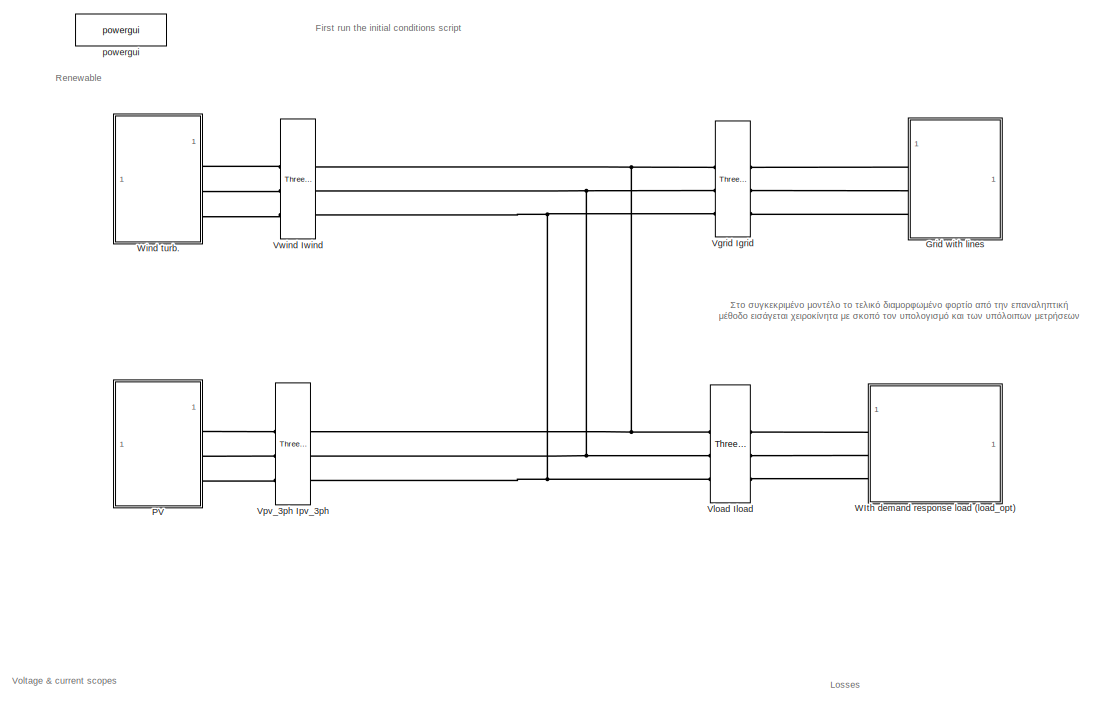
[diagram: root canvas - part 1/6, top center region]
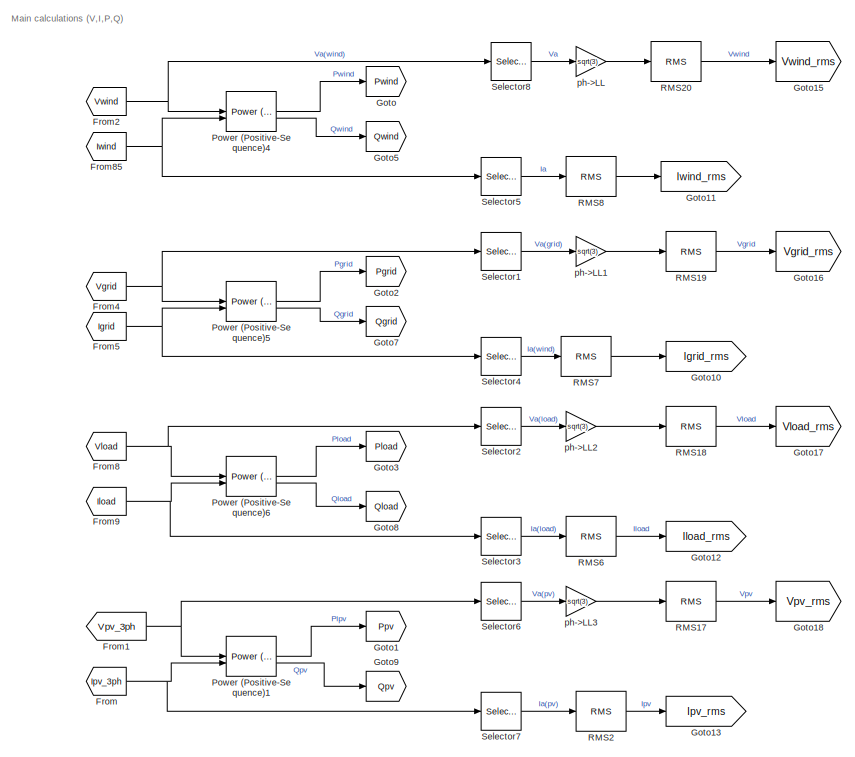
[diagram: root canvas - part 2/6, middle left region]
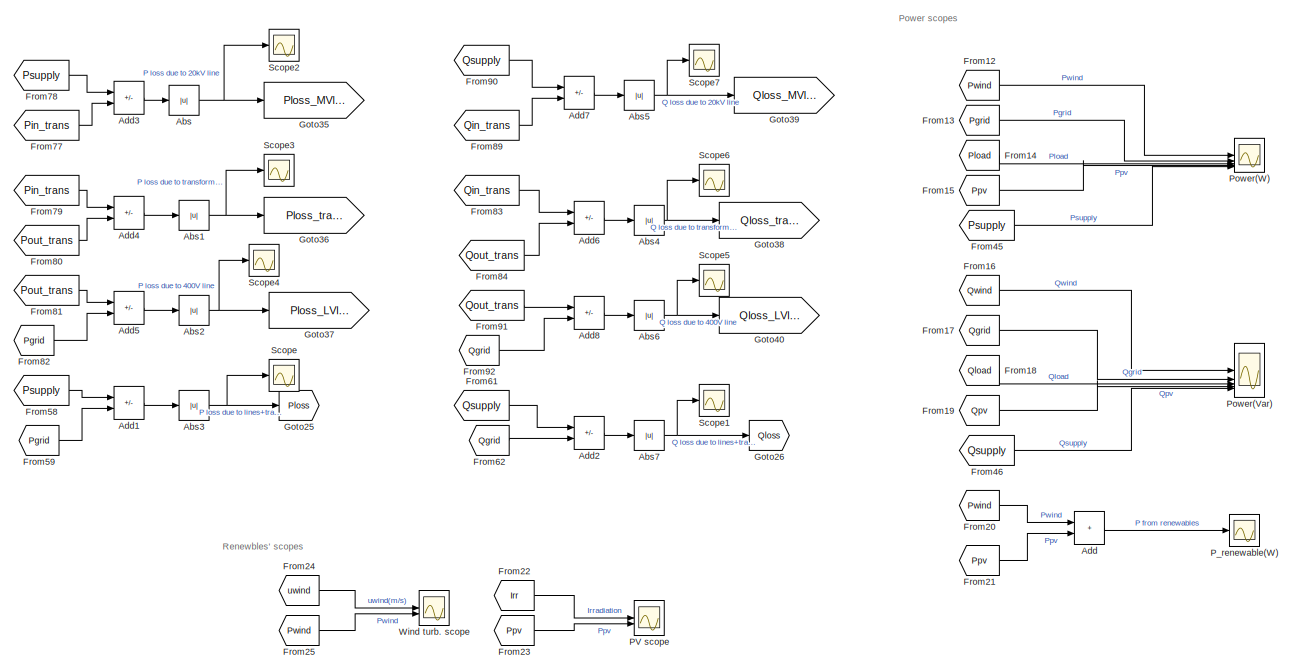
[diagram: root canvas - part 3/6, middle right region]
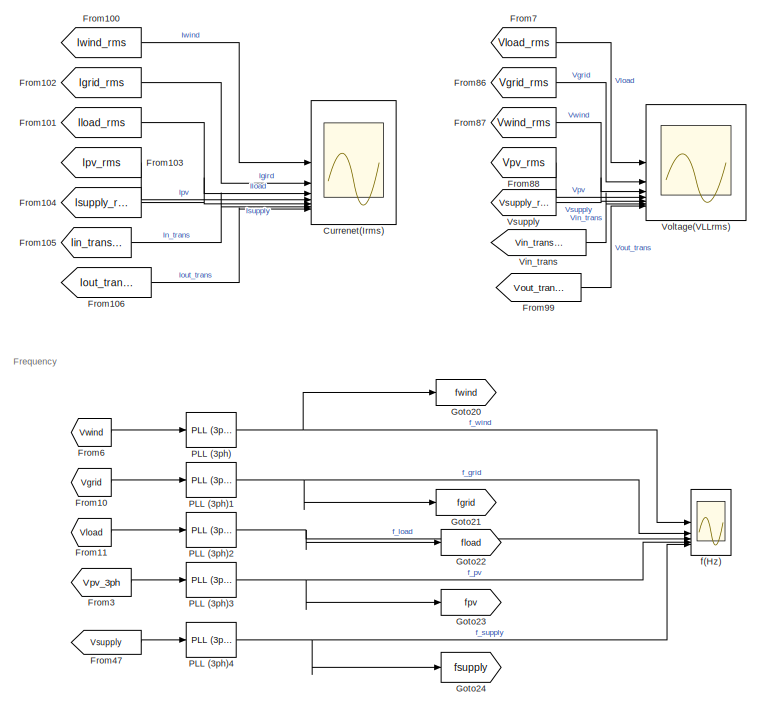
[diagram: root canvas - part 4/6, central region]
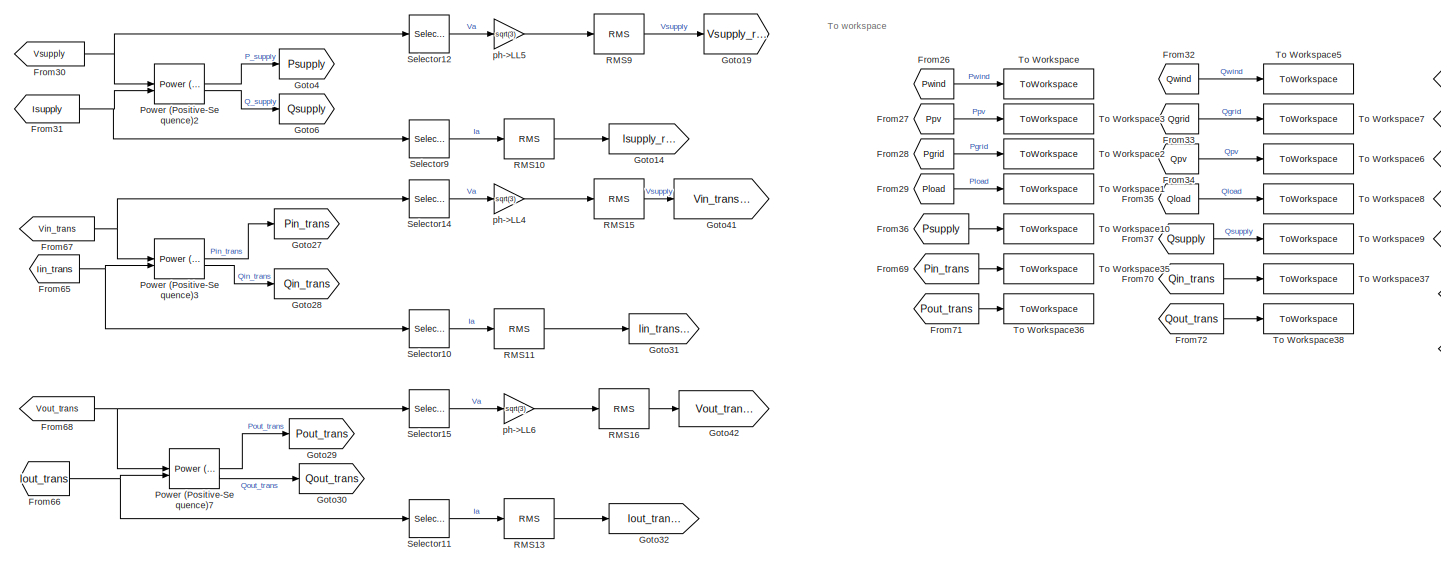
[diagram: root canvas - part 5/6, bottom left region]
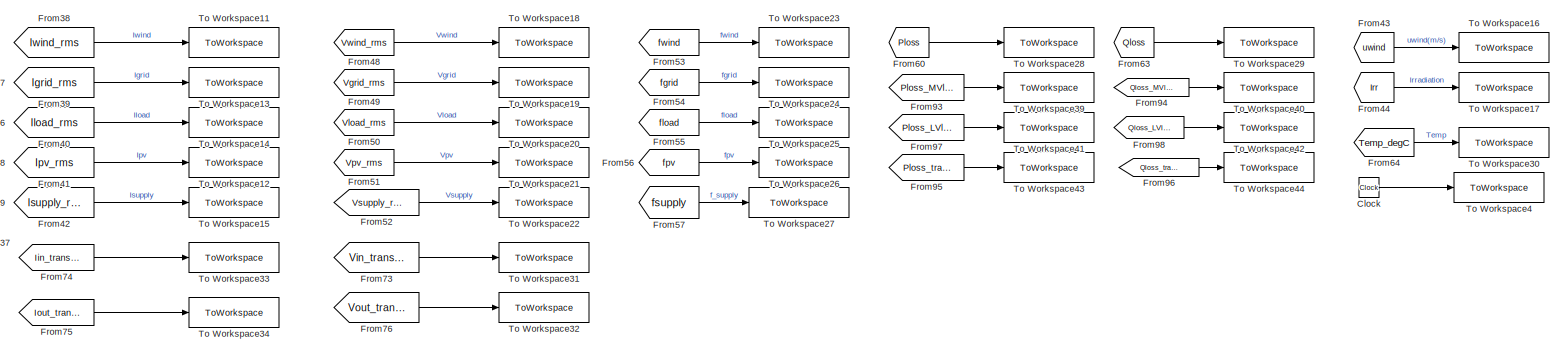
[diagram: root canvas - part 6/6, bottom right region]
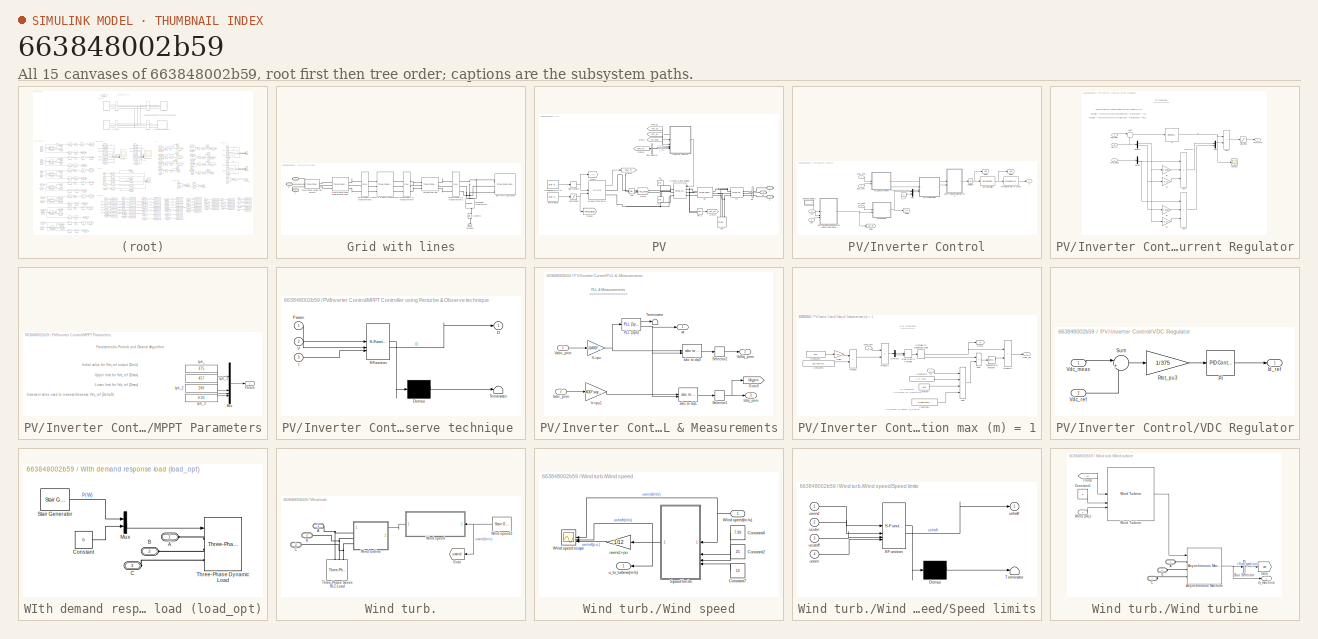
[diagram: thumbnail index - all 15 canvases of the model, root first then tree order]
MODEL slx_663848002b59
KIND model
CONFIG AbsTol = auto
CONFIG EnableMultiTasking = off
CONFIG FixedStep = auto
CONFIG InitFcn = set_param(bdroot, 'StopTime', num2str(stop_time));\n
CONFIG MaxStep = auto
CONFIG MinStep = auto
CONFIG RelTol = 1e-3
CONFIG SampleTimeConstraint = Unconstrained
CONFIG SolverName = VariableStepAuto
CONFIG StartTime = 0.0
CONFIG StopTime = 24
BLOCK [Abs] Abs
  SaturateOnIntegerOverflow = off
BLOCK [Abs] Abs1
  SaturateOnIntegerOverflow = off
BLOCK [Abs] Abs2
  SaturateOnIntegerOverflow = off
BLOCK [Abs] Abs3
  SaturateOnIntegerOverflow = off
BLOCK [Abs] Abs4
  SaturateOnIntegerOverflow = off
BLOCK [Abs] Abs5
  SaturateOnIntegerOverflow = off
BLOCK [Abs] Abs6
  SaturateOnIntegerOverflow = off
BLOCK [Abs] Abs7
  SaturateOnIntegerOverflow = off
BLOCK [Sum] Add
  IconShape = rectangular
BLOCK [Sum] Add1
  IconShape = rectangular
  Inputs = +-
BLOCK [Sum] Add2
  IconShape = rectangular
  Inputs = +-
BLOCK [Sum] Add3
  IconShape = rectangular
  Inputs = +-
BLOCK [Sum] Add4
  IconShape = rectangular
  Inputs = +-
BLOCK [Sum] Add5
  IconShape = rectangular
  Inputs = +-
BLOCK [Sum] Add6
  IconShape = rectangular
  Inputs = +-
BLOCK [Sum] Add7
  IconShape = rectangular
  Inputs = +-
BLOCK [Sum] Add8
  IconShape = rectangular
  Inputs = +-
BLOCK [Clock] Clock
BLOCK [Scope] Currenet(Irms)
  Floating = off
  NumInputPorts = 7
  ScopeSpecificationString = Simulink.scopes.TimeScopeBlockCfg('CurrentConfiguration', extmgr.ConfigurationSet(extmgr.Configuration('Core','General UI',true,'FigureColor',[1 1 1]),extmgr.Configuration('Core','Source UI',true),extmgr.Configuration('Sources','WiredSimulink',true,'DataLoggingVariableName','ScopeData2'),extmgr.Configuration('Visuals','Time Domain',true,'SerializedDisplays',{struct('MinYLimReal','-14.83609','MaxYL...<+2175ch>
BLOCK [From] From
  GotoTag = Ipv_3ph
  TagVisibility = global
BLOCK [From] From1
  GotoTag = Vpv_3ph
  TagVisibility = global
BLOCK [From] From10
  GotoTag = Vgrid
  TagVisibility = global
BLOCK [From] From100
  GotoTag = Iwind_rms
BLOCK [From] From101
  GotoTag = Iload_rms
BLOCK [From] From102
  GotoTag = Igrid_rms
BLOCK [From] From103
  GotoTag = Ipv_rms
BLOCK [From] From104
  GotoTag = Isupply_rms
BLOCK [From] From105
  GotoTag = Iin_trans_rms
BLOCK [From] From106
  GotoTag = Iout_trans_rms
BLOCK [From] From11
  GotoTag = Vload
  TagVisibility = global
BLOCK [From] From12
  GotoTag = Pwind
BLOCK [From] From13
  GotoTag = Pgrid
BLOCK [From] From14
  GotoTag = Pload
  TagVisibility = global
BLOCK [From] From15
  GotoTag = Ppv
BLOCK [From] From16
  GotoTag = Qwind
BLOCK [From] From17
  GotoTag = Qgrid
BLOCK [From] From18
  GotoTag = Qload
BLOCK [From] From19
  GotoTag = Qpv
BLOCK [From] From2
  GotoTag = Vwind
  TagVisibility = global
BLOCK [From] From20
  GotoTag = Pwind
BLOCK [From] From21
  GotoTag = Ppv
BLOCK [From] From22
  GotoTag = Irr
  TagVisibility = global
BLOCK [From] From23
  GotoTag = Ppv
BLOCK [From] From24
  GotoTag = uwind
  TagVisibility = global
BLOCK [From] From25
  GotoTag = Pwind
BLOCK [From] From26
  GotoTag = Pwind
BLOCK [From] From27
  GotoTag = Ppv
BLOCK [From] From28
  GotoTag = Pgrid
BLOCK [From] From29
  GotoTag = Pload
  TagVisibility = global
BLOCK [From] From3
  GotoTag = Vpv_3ph
  TagVisibility = global
BLOCK [From] From30
  GotoTag = Vsupply
  TagVisibility = global
BLOCK [From] From31
  GotoTag = Isupply
  TagVisibility = global
BLOCK [From] From32
  GotoTag = Qwind
BLOCK [From] From33
  GotoTag = Qgrid
BLOCK [From] From34
  GotoTag = Qpv
BLOCK [From] From35
  GotoTag = Qload
BLOCK [From] From36
  GotoTag = Psupply
BLOCK [From] From37
  GotoTag = Qsupply
BLOCK [From] From38
  GotoTag = Iwind_rms
BLOCK [From] From39
  GotoTag = Igrid_rms
BLOCK [From] From4
  GotoTag = Vgrid
  TagVisibility = global
BLOCK [From] From40
  GotoTag = Iload_rms
BLOCK [From] From41
  GotoTag = Ipv_rms
BLOCK [From] From42
  GotoTag = Isupply_rms
BLOCK [From] From43
  GotoTag = uwind
  TagVisibility = global
BLOCK [From] From44
  GotoTag = Irr
  TagVisibility = global
BLOCK [From] From45
  GotoTag = Psupply
BLOCK [From] From46
  GotoTag = Qsupply
BLOCK [From] From47
  GotoTag = Vsupply
  TagVisibility = global
BLOCK [From] From48
  GotoTag = Vwind_rms
BLOCK [From] From49
  GotoTag = Vgrid_rms
BLOCK [From] From5
  GotoTag = Igrid
  TagVisibility = global
BLOCK [From] From50
  GotoTag = Vload_rms
BLOCK [From] From51
  GotoTag = Vpv_rms
BLOCK [From] From52
  GotoTag = Vsupply_rms
BLOCK [From] From53
  GotoTag = fwind
BLOCK [From] From54
  GotoTag = fgrid
BLOCK [From] From55
  GotoTag = fload
BLOCK [From] From56
  GotoTag = fpv
BLOCK [From] From57
  GotoTag = fsupply
BLOCK [From] From58
  GotoTag = Psupply
BLOCK [From] From59
  GotoTag = Pgrid
BLOCK [From] From6
  GotoTag = Vwind
  TagVisibility = global
BLOCK [From] From60
  GotoTag = Ploss
BLOCK [From] From61
  GotoTag = Qsupply
BLOCK [From] From62
  GotoTag = Qgrid
BLOCK [From] From63
  GotoTag = Qloss
BLOCK [From] From64
  GotoTag = Temp_degC
  TagVisibility = global
BLOCK [From] From65
  GotoTag = Iin_trans
  TagVisibility = global
BLOCK [From] From66
  GotoTag = Iout_trans
  TagVisibility = global
BLOCK [From] From67
  GotoTag = Vin_trans
  TagVisibility = global
BLOCK [From] From68
  GotoTag = Vout_trans
  TagVisibility = global
BLOCK [From] From69
  GotoTag = Pin_trans
BLOCK [From] From7
  GotoTag = Vload_rms
BLOCK [From] From70
  GotoTag = Qin_trans
BLOCK [From] From71
  GotoTag = Pout_trans
BLOCK [From] From72
  GotoTag = Qout_trans
BLOCK [From] From73
  GotoTag = Vin_trans_rms
BLOCK [From] From74
  GotoTag = Iin_trans_rms
BLOCK [From] From75
  GotoTag = Iout_trans_rms
BLOCK [From] From76
  GotoTag = Vout_trans_rms
BLOCK [From] From77
  GotoTag = Pin_trans
BLOCK [From] From78
  GotoTag = Psupply
BLOCK [From] From79
  GotoTag = Pin_trans
BLOCK [From] From8
  GotoTag = Vload
  TagVisibility = global
BLOCK [From] From80
  GotoTag = Pout_trans
BLOCK [From] From81
  GotoTag = Pout_trans
BLOCK [From] From82
  GotoTag = Pgrid
BLOCK [From] From83
  GotoTag = Qin_trans
BLOCK [From] From84
  GotoTag = Qout_trans
BLOCK [From] From85
  GotoTag = Iwind
  TagVisibility = global
BLOCK [From] From86
  GotoTag = Vgrid_rms
BLOCK [From] From87
  GotoTag = Vwind_rms
BLOCK [From] From88
  GotoTag = Vpv_rms
BLOCK [From] From89
  GotoTag = Qin_trans
BLOCK [From] From9
  GotoTag = Iload
  TagVisibility = global
BLOCK [From] From90
  GotoTag = Qsupply
BLOCK [From] From91
  GotoTag = Qout_trans
BLOCK [From] From92
  GotoTag = Qgrid
BLOCK [From] From93
  GotoTag = Ploss_MVline
BLOCK [From] From94
  GotoTag = Qloss_MVline
BLOCK [From] From95
  GotoTag = Ploss_transf
BLOCK [From] From96
  GotoTag = Qloss_transf
BLOCK [From] From97
  GotoTag = Ploss_LVline
BLOCK [From] From98
  GotoTag = Qloss_LVline
BLOCK [From] From99
  GotoTag = Vout_trans_rms
BLOCK [Goto] Goto
  GotoTag = Pwind
BLOCK [Goto] Goto1
  GotoTag = Ppv
BLOCK [Goto] Goto10
  GotoTag = Igrid_rms
BLOCK [Goto] Goto11
  GotoTag = Iwind_rms
BLOCK [Goto] Goto12
  GotoTag = Iload_rms
BLOCK [Goto] Goto13
  GotoTag = Ipv_rms
BLOCK [Goto] Goto14
  GotoTag = Isupply_rms
BLOCK [Goto] Goto15
  GotoTag = Vwind_rms
BLOCK [Goto] Goto16
  GotoTag = Vgrid_rms
BLOCK [Goto] Goto17
  GotoTag = Vload_rms
BLOCK [Goto] Goto18
  GotoTag = Vpv_rms
BLOCK [Goto] Goto19
  GotoTag = Vsupply_rms
BLOCK [Goto] Goto2
  GotoTag = Pgrid
BLOCK [Goto] Goto20
  GotoTag = fwind
BLOCK [Goto] Goto21
  GotoTag = fgrid
BLOCK [Goto] Goto22
  GotoTag = fload
BLOCK [Goto] Goto23
  GotoTag = fpv
BLOCK [Goto] Goto24
  GotoTag = fsupply
BLOCK [Goto] Goto25
  GotoTag = Ploss
BLOCK [Goto] Goto26
  GotoTag = Qloss
BLOCK [Goto] Goto27
  GotoTag = Pin_trans
BLOCK [Goto] Goto28
  GotoTag = Qin_trans
BLOCK [Goto] Goto29
  GotoTag = Pout_trans
BLOCK [Goto] Goto3
  GotoTag = Pload
  TagVisibility = global
BLOCK [Goto] Goto30
  GotoTag = Qout_trans
BLOCK [Goto] Goto31
  GotoTag = Iin_trans_rms
BLOCK [Goto] Goto32
  GotoTag = Iout_trans_rms
BLOCK [Goto] Goto35
  GotoTag = Ploss_MVline
BLOCK [Goto] Goto36
  GotoTag = Ploss_transf
BLOCK [Goto] Goto37
  GotoTag = Ploss_LVline
BLOCK [Goto] Goto38
  GotoTag = Qloss_transf
BLOCK [Goto] Goto39
  GotoTag = Qloss_MVline
BLOCK [Goto] Goto4
  GotoTag = Psupply
BLOCK [Goto] Goto40
  GotoTag = Qloss_LVline
BLOCK [Goto] Goto41
  GotoTag = Vin_trans_rms
BLOCK [Goto] Goto42
  GotoTag = Vout_trans_rms
BLOCK [Goto] Goto5
  GotoTag = Qwind
BLOCK [Goto] Goto6
  GotoTag = Qsupply
BLOCK [Goto] Goto7
  GotoTag = Qgrid
BLOCK [Goto] Goto8
  GotoTag = Qload
BLOCK [Goto] Goto9
  GotoTag = Qpv
BLOCK [SubSystem] Grid with lines
BLOCK [Reference] Grid with lines/3*95AL+35CU XLPE underground 400V  REF=spsThreePhasePISectionLineLib/Three-Phase
PI Section Line
  AttributesFormatString = \n
  LibrarySourceBlock = sps_lib/Power Grid Elements/Three-Phase\nPI Section Line
  SourceBlock = spsThreePhasePISectionLineLib/Three-Phase\nPI Section Line
  SourceType = Three-Phase PI Section Line
BLOCK [Reference] Grid with lines/3.3ohms   REF=spsSeriesRLCBranchLib/Series RLC Branch
  LibrarySourceBlock = sps_lib/Passives/Series RLC Branch
  NameLocation = right
  SourceBlock = spsSeriesRLCBranchLib/Series RLC Branch
  SourceType = Series RLC Branch
BLOCK [Reference] Grid with lines/35ACSR 20kV line  REF=spsThreePhasePISectionLineLib/Three-Phase
PI Section Line
  AttributesFormatString = \n
  LibrarySourceBlock = sps_lib/Power Grid Elements/Three-Phase\nPI Section Line
  SourceBlock = spsThreePhasePISectionLineLib/Three-Phase\nPI Section Line
  SourceType = Three-Phase PI Section Line
BLOCK [Reference] Grid with lines/40kVA 0.4//20kV transformer  REF=spsThreePhaseTransformerTwoWindingsLib/Three-Phase
Transformer
(Two Windings)
  LibrarySourceBlock = sps_lib/Power Grid Elements/Three-Phase\nTransformer\n(Two Windings)
  SourceBlock = spsThreePhaseTransformerTwoWindingsLib/Three-Phase\nTransformer\n(Two Windings)
  SourceType = Three-Phase Transformer (Two Windings)
BLOCK [PMIOPort] Grid with lines/A
  Side = Right
BLOCK [PMIOPort] Grid with lines/B
  Port = 2
  Side = Right
BLOCK [PMIOPort] Grid with lines/C
  Port = 3
  Side = Right
BLOCK [Reference] Grid with lines/Grid 7MVA 20kV//50Hz   REF=spsThreePhaseSourceLib/Three-Phase Source
  LibrarySourceBlock = sps_lib/Sources/Three-Phase Source
  SourceBlock = spsThreePhaseSourceLib/Three-Phase Source
  SourceType = Three-Phase Source
BLOCK [Reference] Grid with lines/Ground3  REF=spsGroundLib/Ground
  AttributesFormatString = \n
  LibrarySourceBlock = sps_lib/Utilities/Ground
  NameLocation = right
  SourceBlock = spsGroundLib/Ground
  SourceType = Ground
BLOCK [Reference] Grid with lines/Grounding Transformer   REF=spsGroundingTransformerLib/Grounding
Transformer 
  LibrarySourceBlock = sps_lib/Power Grid Elements/Grounding\nTransformer
  NameLocation = right
  SourceBlock = spsGroundingTransformerLib/Grounding\nTransformer
  SourceType = Grounding Transformer
BLOCK [Reference] Grid with lines/Three-Phase Series RLC Branch  REF=spsThreePhaseSeriesRLCBranchLib/Three-Phase
Series RLC Branch
  AttributesFormatString = \n
  LibrarySourceBlock = sps_lib/Passives/Three-Phase\nSeries RLC Branch
  SourceBlock = spsThreePhaseSeriesRLCBranchLib/Three-Phase\nSeries RLC Branch
  SourceType = Three-Phase Series RLC Branch
BLOCK [Reference] Grid with lines/Three-Phase V-I Measurement1  REF=spsThreePhaseVIMeasurementLib/Three-Phase
V-I Measurement
  LibrarySourceBlock = sps_lib/Sensors and Measurements/Three-Phase\nV-I Measurement
  SourceBlock = spsThreePhaseVIMeasurementLib/Three-Phase\nV-I Measurement
  SourceType = Three-Phase VI Measurement
BLOCK [Reference] Grid with lines/Three-Phase V-I Measurement4  REF=spsThreePhaseVIMeasurementLib/Three-Phase
V-I Measurement
  LibrarySourceBlock = sps_lib/Sensors and Measurements/Three-Phase\nV-I Measurement
  SourceBlock = spsThreePhaseVIMeasurementLib/Three-Phase\nV-I Measurement
  SourceType = Three-Phase VI Measurement
BLOCK [Reference] Grid with lines/Three-Phase V-I Measurement5  REF=spsThreePhaseVIMeasurementLib/Three-Phase
V-I Measurement
  LibrarySourceBlock = sps_lib/Sensors and Measurements/Three-Phase\nV-I Measurement
  SourceBlock = spsThreePhaseVIMeasurementLib/Three-Phase\nV-I Measurement
  SourceType = Three-Phase VI Measurement
BLOCK [Reference] PLL (3ph)  REF=spsPLL3phLib/PLL
(3ph)
  LibrarySourceBlock = sps_lib/Control/PLL\n(3ph)
  SourceBlock = spsPLL3phLib/PLL\n(3ph)
  SourceType = PLL (3ph)
BLOCK [Reference] PLL (3ph)1  REF=spsPLL3phLib/PLL
(3ph)
  LibrarySourceBlock = sps_lib/Control/PLL\n(3ph)
  SourceBlock = spsPLL3phLib/PLL\n(3ph)
  SourceType = PLL (3ph)
BLOCK [Reference] PLL (3ph)2  REF=spsPLL3phLib/PLL
(3ph)
  LibrarySourceBlock = sps_lib/Control/PLL\n(3ph)
  SourceBlock = spsPLL3phLib/PLL\n(3ph)
  SourceType = PLL (3ph)
BLOCK [Reference] PLL (3ph)3  REF=spsPLL3phLib/PLL
(3ph)
  LibrarySourceBlock = sps_lib/Control/PLL\n(3ph)
  SourceBlock = spsPLL3phLib/PLL\n(3ph)
  SourceType = PLL (3ph)
BLOCK [Reference] PLL (3ph)4  REF=spsPLL3phLib/PLL
(3ph)
  LibrarySourceBlock = sps_lib/Control/PLL\n(3ph)
  SourceBlock = spsPLL3phLib/PLL\n(3ph)
  SourceType = PLL (3ph)
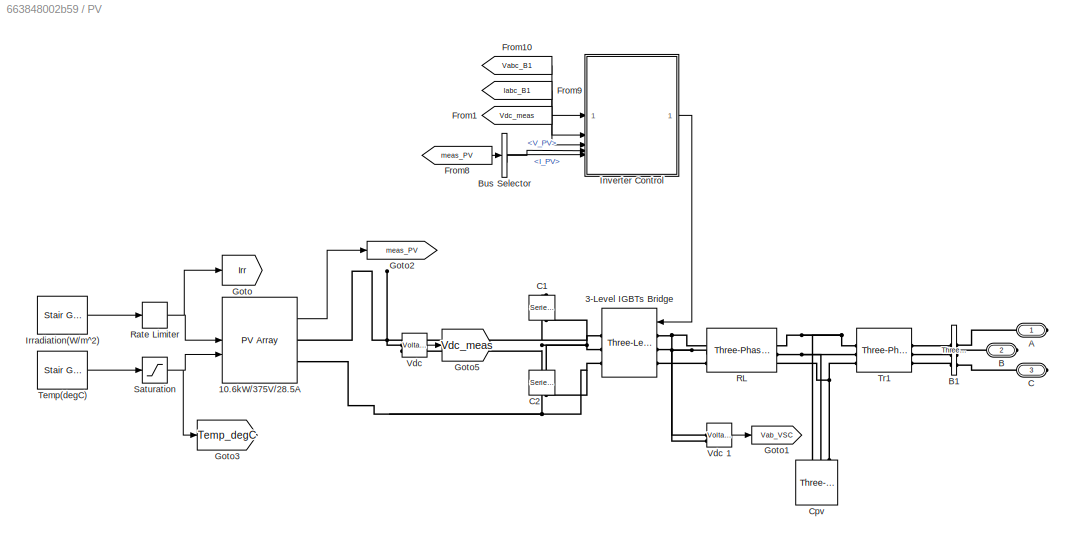
BLOCK [SubSystem] PV
BLOCK [Scope] PV scope
  Floating = off
  NumInputPorts = 2
  ScopeSpecificationString = Simulink.scopes.TimeScopeBlockCfg('CurrentConfiguration', extmgr.ConfigurationSet(extmgr.Configuration('Core','General UI',true,'FigureColor',[1 1 1]),extmgr.Configuration('Core','Source UI',true),extmgr.Configuration('Sources','WiredSimulink',true,'DataLoggingVariableName','ScopeData3'),extmgr.Configuration('Visuals','Time Domain',true,'SerializedDisplays',{struct('MinYLimReal','-106.25','MaxYLim...<+2737ch>
BLOCK [Reference] PV/10.6kW//375V//28.5A  REF=spsPVArrayLib/PV Array
  LibrarySourceBlock = sps_lib/Sources/PV Array
  SourceBlock = spsPVArrayLib/PV Array
  SourceType = PV array
BLOCK [Reference] PV/3-Level IGBTs Bridge  REF=spsThreeLevelBridgeLib/Three-Level Bridge
  AttributesFormatString = \n
  LibrarySourceBlock = sps_lib/Power Electronics/Three-Level Bridge
  SourceBlock = spsThreeLevelBridgeLib/Three-Level Bridge
  SourceType = Three-Level Bridge
BLOCK [PMIOPort] PV/A
  Side = Right
BLOCK [PMIOPort] PV/B
  Port = 2
  Side = Right
BLOCK [Reference] PV/B1  REF=spsThreePhaseVIMeasurementLib/Three-Phase
V-I Measurement
  LibrarySourceBlock = sps_lib/Sensors and Measurements/Three-Phase\nV-I Measurement
  SourceBlock = spsThreePhaseVIMeasurementLib/Three-Phase\nV-I Measurement
  SourceType = Three-Phase VI Measurement
BLOCK [BusSelector] PV/Bus Selector
  OutputSignals = V_PV,I_PV
BLOCK [PMIOPort] PV/C
  Port = 3
  Side = Right
BLOCK [Reference] PV/C1  REF=spsSeriesRLCBranchLib/Series RLC Branch
  AttributesFormatString = \n
  LibrarySourceBlock = sps_lib/Passives/Series RLC Branch
  NameLocation = left
  SourceBlock = spsSeriesRLCBranchLib/Series RLC Branch
  SourceType = Series RLC Branch
BLOCK [Reference] PV/C2  REF=spsSeriesRLCBranchLib/Series RLC Branch
  AttributesFormatString = \n
  LibrarySourceBlock = sps_lib/Passives/Series RLC Branch
  NameLocation = left
  SourceBlock = spsSeriesRLCBranchLib/Series RLC Branch
  SourceType = Series RLC Branch
BLOCK [Reference] PV/Cpv  REF=spsThreePhaseSeriesRLCLoadLib/Three-Phase
Series RLC Load
  AttributesFormatString = \n
  LibrarySourceBlock = sps_lib/Passives/Three-Phase\nSeries RLC Load
  NameLocation = right
  SourceBlock = spsThreePhaseSeriesRLCLoadLib/Three-Phase\nSeries RLC Load
  SourceType = Three-Phase Series RLC Load
BLOCK [From] PV/From1
  CloseFcn = tagdialog Close
  GotoTag = Vdc_meas
  TagVisibility = global
BLOCK [From] PV/From10
  CloseFcn = tagdialog Close
  GotoTag = Vabc_B1
  TagVisibility = global
BLOCK [From] PV/From8
  CloseFcn = tagdialog Close
  GotoTag = meas_PV
  TagVisibility = global
BLOCK [From] PV/From9
  CloseFcn = tagdialog Close
  GotoTag = Iabc_B1
  TagVisibility = global
BLOCK [Goto] PV/Goto
  GotoTag = Irr
  TagVisibility = global
BLOCK [Goto] PV/Goto1
  GotoTag = Vab_VSC
  TagVisibility = global
BLOCK [Goto] PV/Goto2
  GotoTag = meas_PV
  TagVisibility = global
BLOCK [Goto] PV/Goto3
  GotoTag = Temp_degC
  TagVisibility = global
BLOCK [Goto] PV/Goto5
  GotoTag = Vdc_meas
  NameLocation = top
  TagVisibility = global
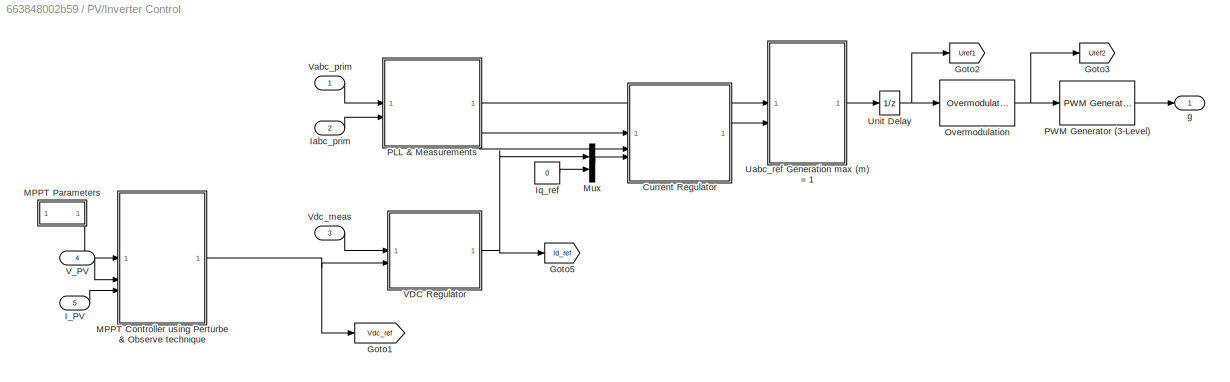
BLOCK [SubSystem] PV/Inverter Control
BLOCK [SubSystem] PV/Inverter Control/Current Regulator
BLOCK [Sum] PV/Inverter Control/Current Regulator/Add1
  IconShape = rectangular
  Inputs = ++-
BLOCK [Sum] PV/Inverter Control/Current Regulator/Add2
  IconShape = rectangular
BLOCK [Sum] PV/Inverter Control/Current Regulator/Add3
  IconShape = rectangular
  Inputs = +++
BLOCK [Demux] PV/Inverter Control/Current Regulator/Demux
  Outputs = 2
BLOCK [Demux] PV/Inverter Control/Current Regulator/Demux1
  Outputs = 2
BLOCK [Inport] PV/Inverter Control/Current Regulator/IdIq_meas
  Port = 2
  PortDimensions = 2
BLOCK [Inport] PV/Inverter Control/Current Regulator/IdIq_ref
  Port = 3
  PortDimensions = 2
BLOCK [Gain] PV/Inverter Control/Current Regulator/Lff
  Gain = 0.21
  OutDataTypeStr = Inherit: Same as input
  ParamDataTypeStr = Inherit: Same as input
  SaturateOnIntegerOverflow = on
BLOCK [Gain] PV/Inverter Control/Current Regulator/Lff  
  Gain = 0.21
  OutDataTypeStr = Inherit: Same as input
  ParamDataTypeStr = Inherit: Same as input
  SaturateOnIntegerOverflow = on
BLOCK [Mux] PV/Inverter Control/Current Regulator/Mux
  DisplayOption = bar
  Inputs = 2
BLOCK [Reference] PV/Inverter Control/Current Regulator/PI  REF=slpidlib/PID Controller
  SourceBlock = slpidlib/PID Controller
  SourceType = PID 1dof
BLOCK [Scope] PV/Inverter Control/Current Regulator/PI_Ireg1
  Floating = off
  NumInputPorts = 1
  ScopeSpecificationString = C++SS(StrPVP('Location','[1318, 429, 1642, 668]'),MxPVP('AxesTitles',54,'struct(''axes1'',''%<SignalLabel>'')'),MxPVP('ScopeGraphics',57,'struct(''FigureColor'',''[0.5 0.5 0.5]'',''AxesColor'',''[0 0 0]'',''AxesTickColor'',''[1 1 1]'',''LineColors'',''[1 1 0;1 0 1;0 1 1;1 0 0;0 1 0;0 0 1]'',''LineStyles'',''-|-|-|-|-|-'',''LineWidths'',''[0.5 0.5 0.5 0.5 0.5 0.5]'',''MarkerStyles'',''none|none|non...<+191ch>
BLOCK [Gain] PV/Inverter Control/Current Regulator/Rff
  Gain = 0.0039
  NameLocation = top
  OutDataTypeStr = Inherit: Same as input
  ParamDataTypeStr = Inherit: Same as input
  SaturateOnIntegerOverflow = on
BLOCK [Gain] PV/Inverter Control/Current Regulator/Rff 
  Gain = 0.0039
  NameLocation = top
  OutDataTypeStr = Inherit: Same as input
  ParamDataTypeStr = Inherit: Same as input
  SaturateOnIntegerOverflow = on
BLOCK [Saturate] PV/Inverter Control/Current Regulator/Saturation
  LowerLimit = -1.5
  UpperLimit = 1.5
BLOCK [Sum] PV/Inverter Control/Current Regulator/Sum
  Inputs = |-+
BLOCK [Outport] PV/Inverter Control/Current Regulator/VdVq_conv
  VectorParamsAs1DForOutWhenUnconnected = off
BLOCK [Inport] PV/Inverter Control/Current Regulator/VdVq_meas
  PortDimensions = 2
BLOCK [Goto] PV/Inverter Control/Goto1
  GotoTag = Vdc_ref
  TagVisibility = global
BLOCK [Goto] PV/Inverter Control/Goto2
  GotoTag = Uref1
  TagVisibility = global
BLOCK [Goto] PV/Inverter Control/Goto3
  GotoTag = Uref2
  TagVisibility = global
BLOCK [Goto] PV/Inverter Control/Goto5
  GotoTag = Id_ref
  TagVisibility = global
BLOCK [Inport] PV/Inverter Control/I_PV
  Port = 5
  PortDimensions = 1
BLOCK [Inport] PV/Inverter Control/Iabc_prim
  Port = 2
  PortDimensions = 3
BLOCK [Constant] PV/Inverter Control/Iq_ref
  Value = 0
BLOCK [SubSystem] PV/Inverter Control/MPPT Controller using Perturbe & Observe technique 
  ErrorFcn = Stateflow.Translate.translate
  NameLocation = top
  PermitHierarchicalResolution = ExplicitOnly
  SFBlockType = MATLAB Function
  TreatAsAtomicUnit = on
BLOCK [Demux] PV/Inverter Control/MPPT Controller using Perturbe & Observe technique / Demux 
  Outputs = 1
BLOCK [S-Function] PV/Inverter Control/MPPT Controller using Perturbe & Observe technique / SFunction 
  EnableBusSupport = on
  FunctionName = sf_sfun
  PortCounts = [3 2]
  SFcnIsStateOwnerBlock = off
  SFunctionDeploymentMode = off
  Tag = Stateflow S-Function 1
BLOCK [Terminator] PV/Inverter Control/MPPT Controller using Perturbe & Observe technique / Terminator 
BLOCK [Outport] PV/Inverter Control/MPPT Controller using Perturbe & Observe technique /D
  VectorParamsAs1DForOutWhenUnconnected = off
BLOCK [Inport] PV/Inverter Control/MPPT Controller using Perturbe & Observe technique /I
  Port = 3
BLOCK [Inport] PV/Inverter Control/MPPT Controller using Perturbe & Observe technique /Param
BLOCK [Inport] PV/Inverter Control/MPPT Controller using Perturbe & Observe technique /V
  Port = 2
BLOCK [SubSystem] PV/Inverter Control/MPPT Parameters
  NameLocation = top
BLOCK [Constant] PV/Inverter Control/MPPT Parameters/Iph_
  Value = 375
BLOCK [Constant] PV/Inverter Control/MPPT Parameters/Iph_1
  Value = 457
BLOCK [Constant] PV/Inverter Control/MPPT Parameters/Iph_2
  Value = 280
BLOCK [Constant] PV/Inverter Control/MPPT Parameters/Iph_3
  Value = 0.01
BLOCK [Mux] PV/Inverter Control/MPPT Parameters/Mux
  DisplayOption = bar
BLOCK [Outport] PV/Inverter Control/MPPT Parameters/Param
  VectorParamsAs1DForOutWhenUnconnected = off
BLOCK [Mux] PV/Inverter Control/Mux
  DisplayOption = bar
  Inputs = 2
BLOCK [Reference] PV/Inverter Control/Overmodulation  REF=spsOvermodulationLib/Overmodulation
  LibrarySourceBlock = sps_lib/Power Electronics/Power Electronics Control/Overmodulation
  SourceBlock = spsOvermodulationLib/Overmodulation
  SourceType = Overmodulation
BLOCK [SubSystem] PV/Inverter Control/PLL & Measurements
BLOCK [Goto] PV/Inverter Control/PLL & Measurements/Goto3
  GotoTag = IdIq_prim
  TagVisibility = global
BLOCK [Inport] PV/Inverter Control/PLL & Measurements/Iabc_prim
  Port = 2
BLOCK [Outport] PV/Inverter Control/PLL & Measurements/IdIq_prim
  Port = 3
  VectorParamsAs1DForOutWhenUnconnected = off
BLOCK [Reference] PV/Inverter Control/PLL & Measurements/PLL (3ph)  REF=spsPLL3phLib/PLL
(3ph)
  LibrarySourceBlock = sps_lib/Control/PLL\n(3ph)
  SourceBlock = spsPLL3phLib/PLL\n(3ph)
  SourceType = PLL (3ph)
BLOCK [Selector] PV/Inverter Control/PLL & Measurements/Selector1
  IndexOptions = Index vector (dialog)
  Indices = [1 2]
  InputPortWidth = 3
  OutputSizes = 1
BLOCK [Selector] PV/Inverter Control/PLL & Measurements/Selector2
  IndexOptions = Index vector (dialog)
  Indices = [1 2]
  InputPortWidth = 3
  OutputSizes = 1
BLOCK [Terminator] PV/Inverter Control/PLL & Measurements/Terminator
BLOCK [Gain] PV/Inverter Control/PLL & Measurements/V->pu
  Gain = 1/(400*sqrt(2)/sqrt(3))
  OutDataTypeStr = Inherit: Same as input
  ParamDataTypeStr = Inherit: Same as input
  SaturateOnIntegerOverflow = on
BLOCK [Gain] PV/Inverter Control/PLL & Measurements/V->pu1
  Gain = 400*sqrt(3)/Pnom/sqrt(2)
  OutDataTypeStr = Inherit: Same as input
  ParamDataTypeStr = Inherit: Same as input
  SaturateOnIntegerOverflow = on
BLOCK [Inport] PV/Inverter Control/PLL & Measurements/Vabc_prim
BLOCK [Outport] PV/Inverter Control/PLL & Measurements/VdVq_prim
  Port = 2
  VectorParamsAs1DForOutWhenUnconnected = off
BLOCK [Reference] PV/Inverter Control/PLL & Measurements/abc to dq0  REF=spsabctodq0Lib/abc to dq0
  LibrarySourceBlock = sps_lib/Control/abc to dq0
  SourceBlock = spsabctodq0Lib/abc to dq0
  SourceType = abc to dq0 Transformation
BLOCK [Reference] PV/Inverter Control/PLL & Measurements/abc to dq1  REF=spsabctodq0Lib/abc to dq0
  LibrarySourceBlock = sps_lib/Control/abc to dq0
  SourceBlock = spsabctodq0Lib/abc to dq0
  SourceType = abc to dq0 Transformation
BLOCK [Outport] PV/Inverter Control/PLL & Measurements/wt
  VectorParamsAs1DForOutWhenUnconnected = off
BLOCK [Reference] PV/Inverter Control/PWM Generator (3-Level)  REF=spsPWMGenerator3LevelLib/PWM Generator
(3-Level)
  LibrarySourceBlock = sps_lib/Power Electronics/Power Electronics Control/PWM Generator\n(3-Level)
  SourceBlock = spsPWMGenerator3LevelLib/PWM Generator\n(3-Level)
  SourceType = PWM Generator (3-Level)
BLOCK [SubSystem] PV/Inverter Control/Uabc_ref Generation max (m) = 1
BLOCK [Sum] PV/Inverter Control/Uabc_ref Generation max (m) = 1/Add1
  IconShape = rectangular
  Inputs = ++++
BLOCK [Sum] PV/Inverter Control/Uabc_ref Generation max (m) = 1/Add2
  IconShape = rectangular
BLOCK [ComplexToMagnitudeAngle] PV/Inverter Control/Uabc_ref Generation max (m) = 1/Complex to Magnitude-Angle
BLOCK [Constant] PV/Inverter Control/Uabc_ref Generation max (m) = 1/Constant
  Value = -pi/6
BLOCK [Constant] PV/Inverter Control/Uabc_ref Generation max (m) = 1/Constant1
  Value = 375
BLOCK [Constant] PV/Inverter Control/Uabc_ref Generation max (m) = 1/Constant2
  Value = [ 0  -2*pi/3  2*pi/3  ]
BLOCK [Constant] PV/Inverter Control/Uabc_ref Generation max (m) = 1/Constant3
  Value = 195.1937*sqrt(2)/sqrt(3)
BLOCK [Constant] PV/Inverter Control/Uabc_ref Generation max (m) = 1/Constant4
  Value = 6.06e-5*50*(2*pi)
BLOCK [Demux] PV/Inverter Control/Uabc_ref Generation max (m) = 1/Demux1
  Outputs = 2
BLOCK [Gain] PV/Inverter Control/Uabc_ref Generation max (m) = 1/Gain1
  Gain = 1/2
BLOCK [Goto] PV/Inverter Control/Uabc_ref Generation max (m) = 1/Goto1
  GotoTag = m
  TagVisibility = global
BLOCK [Product] PV/Inverter Control/Uabc_ref Generation max (m) = 1/Product
  Inputs = */
  RndMeth = Zero
BLOCK [Product] PV/Inverter Control/Uabc_ref Generation max (m) = 1/Product1
  Inputs = */
  RndMeth = Zero
BLOCK [Product] PV/Inverter Control/Uabc_ref Generation max (m) = 1/Product2
  Inputs = **
  RndMeth = Zero
BLOCK [RealImagToComplex] PV/Inverter Control/Uabc_ref Generation max (m) = 1/Real-Imag to Complex
BLOCK [Trigonometry] PV/Inverter Control/Uabc_ref Generation max (m) = 1/Trigonometric Function
BLOCK [Outport] PV/Inverter Control/Uabc_ref Generation max (m) = 1/Uabc_ref
  VectorParamsAs1DForOutWhenUnconnected = off
BLOCK [Inport] PV/Inverter Control/Uabc_ref Generation max (m) = 1/VdVq_conv
  Port = 2
BLOCK [Inport] PV/Inverter Control/Uabc_ref Generation max (m) = 1/wt
BLOCK [UnitDelay] PV/Inverter Control/Unit Delay
  HasFrameUpgradeWarning = on
  SampleTime = 6.06e-5
BLOCK [SubSystem] PV/Inverter Control/VDC Regulator
BLOCK [Outport] PV/Inverter Control/VDC Regulator/Id_ref
  InitialOutput = 0
  VectorParamsAs1DForOutWhenUnconnected = off
BLOCK [Reference] PV/Inverter Control/VDC Regulator/PI  REF=slpidlib/PID Controller
  SourceBlock = slpidlib/PID Controller
  SourceType = PID 1dof
BLOCK [Gain] PV/Inverter Control/VDC Regulator/Rtot_pu3
  Gain = 1/375
  OutDataTypeStr = Inherit: Same as input
  ParamDataTypeStr = Inherit: Same as input
  SaturateOnIntegerOverflow = on
BLOCK [Sum] PV/Inverter Control/VDC Regulator/Sum
  Inputs = |+-
BLOCK [Inport] PV/Inverter Control/VDC Regulator/Vdc_meas
  PortDimensions = 1
BLOCK [Inport] PV/Inverter Control/VDC Regulator/Vdc_ref
  Port = 2
  PortDimensions = 1
BLOCK [Inport] PV/Inverter Control/V_PV
  Port = 4
  PortDimensions = 1
BLOCK [Inport] PV/Inverter Control/Vabc_prim
  PortDimensions = 3
BLOCK [Inport] PV/Inverter Control/Vdc_meas
  Port = 3
  PortDimensions = 1
BLOCK [Outport] PV/Inverter Control/g
  NameLocation = top
  VectorParamsAs1DForOutWhenUnconnected = off
BLOCK [Reference] PV/Irradiation(W//m^2)  REF=spsStairGeneratorLib/Stair
Generator
  LibrarySourceBlock = sps_lib/Sources/Signal Generator Sources/Stair\nGenerator
  SourceBlock = spsStairGeneratorLib/Stair\nGenerator
  SourceType = Stair Generator
BLOCK [Reference] PV/RL  REF=spsThreePhaseSeriesRLCBranchLib/Three-Phase
Series RLC Branch
  AttributesFormatString = \n
  LibrarySourceBlock = sps_lib/Passives/Three-Phase\nSeries RLC Branch
  SourceBlock = spsThreePhaseSeriesRLCBranchLib/Three-Phase\nSeries RLC Branch
  SourceType = Three-Phase Series RLC Branch
BLOCK [RateLimiter] PV/Rate Limiter
  FallingSlewLimit = -6000
  InitialCondition = 1000
  NameLocation = top
  RisingSlewLimit = 6000
  SampleTimeMode = inherited
BLOCK [Saturate] PV/Saturation
  LowerLimit = 5
  UpperLimit = 55
BLOCK [Reference] PV/Temp(degC)  REF=spsStairGeneratorLib/Stair
Generator
  LibrarySourceBlock = sps_lib/Sources/Signal Generator Sources/Stair\nGenerator
  SourceBlock = spsStairGeneratorLib/Stair\nGenerator
  SourceType = Stair Generator
BLOCK [Reference] PV/Tr1  REF=spsThreePhaseTransformerTwoWindingsLib/Three-Phase
Transformer
(Two Windings)
  AttributesFormatString = \n
  LibrarySourceBlock = sps_lib/Power Grid Elements/Three-Phase\nTransformer\n(Two Windings)
  SourceBlock = spsThreePhaseTransformerTwoWindingsLib/Three-Phase\nTransformer\n(Two Windings)
  SourceType = Three-Phase Transformer (Two Windings)
BLOCK [Reference] PV/Vdc   REF=spsVoltageMeasurementLib/Voltage Measurement
  AttributesFormatString = \n
  LibrarySourceBlock = sps_lib/Sensors and Measurements/Voltage Measurement
  NameLocation = top
  SourceBlock = spsVoltageMeasurementLib/Voltage Measurement
  SourceType = Voltage Measurement
  Tag = PoWeRsYsTeMmEaSuReMeNt
BLOCK [Reference] PV/Vdc 1  REF=spsVoltageMeasurementLib/Voltage Measurement
  AttributesFormatString = \n
  LibrarySourceBlock = sps_lib/Sensors and Measurements/Voltage Measurement
  NameLocation = top
  SourceBlock = spsVoltageMeasurementLib/Voltage Measurement
  SourceType = Voltage Measurement
  Tag = PoWeRsYsTeMmEaSuReMeNt
BLOCK [Scope] P_renewable(W)
  Floating = off
  NumInputPorts = 1
  ScopeSpecificationString = Simulink.scopes.TimeScopeBlockCfg('CurrentConfiguration', extmgr.ConfigurationSet(extmgr.Configuration('Core','General UI',true,'FigureColor',[1 1 1]),extmgr.Configuration('Core','Source UI',true),extmgr.Configuration('Sources','WiredSimulink',true,'DataLoggingVariableName','ScopeData4'),extmgr.Configuration('Visuals','Time Domain',true,'SerializedDisplays',{struct('MinYLimReal','-2024.64436','Max...<+1628ch>
BLOCK [Reference] Power (Positive-Sequence)1  REF=spsPowerPositiveSequenceLib/Power
(Positive-Sequence)
  LibrarySourceBlock = sps_lib/Sensors and Measurements/Power\n(Positive-Sequence)
  SourceBlock = spsPowerPositiveSequenceLib/Power\n(Positive-Sequence)
  SourceType = Power (Positive-Sequence)
BLOCK [Reference] Power (Positive-Sequence)2  REF=spsPowerPositiveSequenceLib/Power
(Positive-Sequence)
  LibrarySourceBlock = sps_lib/Sensors and Measurements/Power\n(Positive-Sequence)
  SourceBlock = spsPowerPositiveSequenceLib/Power\n(Positive-Sequence)
  SourceType = Power (Positive-Sequence)
BLOCK [Reference] Power (Positive-Sequence)3  REF=spsPowerPositiveSequenceLib/Power
(Positive-Sequence)
  LibrarySourceBlock = sps_lib/Sensors and Measurements/Power\n(Positive-Sequence)
  SourceBlock = spsPowerPositiveSequenceLib/Power\n(Positive-Sequence)
  SourceType = Power (Positive-Sequence)
BLOCK [Reference] Power (Positive-Sequence)4  REF=spsPowerPositiveSequenceLib/Power
(Positive-Sequence)
  LibrarySourceBlock = sps_lib/Sensors and Measurements/Power\n(Positive-Sequence)
  SourceBlock = spsPowerPositiveSequenceLib/Power\n(Positive-Sequence)
  SourceType = Power (Positive-Sequence)
BLOCK [Reference] Power (Positive-Sequence)5  REF=spsPowerPositiveSequenceLib/Power
(Positive-Sequence)
  LibrarySourceBlock = sps_lib/Sensors and Measurements/Power\n(Positive-Sequence)
  SourceBlock = spsPowerPositiveSequenceLib/Power\n(Positive-Sequence)
  SourceType = Power (Positive-Sequence)
BLOCK [Reference] Power (Positive-Sequence)6  REF=spsPowerPositiveSequenceLib/Power
(Positive-Sequence)
  LibrarySourceBlock = sps_lib/Sensors and Measurements/Power\n(Positive-Sequence)
  SourceBlock = spsPowerPositiveSequenceLib/Power\n(Positive-Sequence)
  SourceType = Power (Positive-Sequence)
BLOCK [Reference] Power (Positive-Sequence)7  REF=spsPowerPositiveSequenceLib/Power
(Positive-Sequence)
  LibrarySourceBlock = sps_lib/Sensors and Measurements/Power\n(Positive-Sequence)
  SourceBlock = spsPowerPositiveSequenceLib/Power\n(Positive-Sequence)
  SourceType = Power (Positive-Sequence)
BLOCK [Scope] Power(Var)
  Floating = off
  NumInputPorts = 5
  ScopeSpecificationString = Simulink.scopes.TimeScopeBlockCfg('CurrentConfiguration', extmgr.ConfigurationSet(extmgr.Configuration('Core','General UI',true,'FigureColor',[1 1 1]),extmgr.Configuration('Core','Source UI',true),extmgr.Configuration('Sources','WiredSimulink',true,'DataLoggingVariableName','ScopeData5'),extmgr.Configuration('Visuals','Time Domain',true,'SerializedDisplays',{struct('MinYLimReal','-20145.34567','Ma...<+2052ch>
BLOCK [Scope] Power(W)
  Floating = off
  NumInputPorts = 5
  ScopeSpecificationString = Simulink.scopes.TimeScopeBlockCfg('CurrentConfiguration', extmgr.ConfigurationSet(extmgr.Configuration('Core','General UI',true,'FigureColor',[1 1 1]),extmgr.Configuration('Core','Source UI',true),extmgr.Configuration('Sources','WiredSimulink',true,'DataLoggingVariableName','ScopeData6'),extmgr.Configuration('Visuals','Time Domain',true,'SerializedDisplays',{struct('MinYLimReal','-10080.98023','Ma...<+2106ch>
BLOCK [Reference] RMS10  REF=spsRMSLib/RMS
  LibrarySourceBlock = sps_lib/Sensors and Measurements/RMS
  SourceBlock = spsRMSLib/RMS
  SourceType = RMS
BLOCK [Reference] RMS11  REF=spsRMSLib/RMS
  LibrarySourceBlock = sps_lib/Sensors and Measurements/RMS
  SourceBlock = spsRMSLib/RMS
  SourceType = RMS
BLOCK [Reference] RMS13  REF=spsRMSLib/RMS
  LibrarySourceBlock = sps_lib/Sensors and Measurements/RMS
  SourceBlock = spsRMSLib/RMS
  SourceType = RMS
BLOCK [Reference] RMS15  REF=spsRMSLib/RMS
  LibrarySourceBlock = sps_lib/Sensors and Measurements/RMS
  SourceBlock = spsRMSLib/RMS
  SourceType = RMS
BLOCK [Reference] RMS16  REF=spsRMSLib/RMS
  LibrarySourceBlock = sps_lib/Sensors and Measurements/RMS
  SourceBlock = spsRMSLib/RMS
  SourceType = RMS
BLOCK [Reference] RMS17  REF=spsRMSLib/RMS
  LibrarySourceBlock = sps_lib/Sensors and Measurements/RMS
  SourceBlock = spsRMSLib/RMS
  SourceType = RMS
BLOCK [Reference] RMS18  REF=spsRMSLib/RMS
  LibrarySourceBlock = sps_lib/Sensors and Measurements/RMS
  SourceBlock = spsRMSLib/RMS
  SourceType = RMS
BLOCK [Reference] RMS19  REF=spsRMSLib/RMS
  LibrarySourceBlock = sps_lib/Sensors and Measurements/RMS
  SourceBlock = spsRMSLib/RMS
  SourceType = RMS
BLOCK [Reference] RMS2  REF=spsRMSLib/RMS
  LibrarySourceBlock = sps_lib/Sensors and Measurements/RMS
  SourceBlock = spsRMSLib/RMS
  SourceType = RMS
BLOCK [Reference] RMS20  REF=spsRMSLib/RMS
  LibrarySourceBlock = sps_lib/Sensors and Measurements/RMS
  SourceBlock = spsRMSLib/RMS
  SourceType = RMS
BLOCK [Reference] RMS6  REF=spsRMSLib/RMS
  LibrarySourceBlock = sps_lib/Sensors and Measurements/RMS
  SourceBlock = spsRMSLib/RMS
  SourceType = RMS
BLOCK [Reference] RMS7  REF=spsRMSLib/RMS
  LibrarySourceBlock = sps_lib/Sensors and Measurements/RMS
  SourceBlock = spsRMSLib/RMS
  SourceType = RMS
BLOCK [Reference] RMS8  REF=spsRMSLib/RMS
  LibrarySourceBlock = sps_lib/Sensors and Measurements/RMS
  SourceBlock = spsRMSLib/RMS
  SourceType = RMS
BLOCK [Reference] RMS9  REF=spsRMSLib/RMS
  LibrarySourceBlock = sps_lib/Sensors and Measurements/RMS
  SourceBlock = spsRMSLib/RMS
  SourceType = RMS
BLOCK [Scope] Scope
  Floating = off
  NumInputPorts = 1
  ScopeSpecificationString = Simulink.scopes.TimeScopeBlockCfg('CurrentConfiguration', extmgr.ConfigurationSet(extmgr.Configuration('Core','General UI',true),extmgr.Configuration('Core','Source UI',true),extmgr.Configuration('Sources','WiredSimulink',true,'DataLoggingVariableName','ScopeData1'),extmgr.Configuration('Visuals','Time Domain',true,'SerializedDisplays',{struct('MinYLimReal','-169.5916','MaxYLimReal','546.8649','YL...<+1593ch>
BLOCK [Scope] Scope1
  Floating = off
  NumInputPorts = 1
  ScopeSpecificationString = Simulink.scopes.TimeScopeBlockCfg('CurrentConfiguration', extmgr.ConfigurationSet(extmgr.Configuration('Core','General UI',true),extmgr.Configuration('Core','Source UI',true),extmgr.Configuration('Sources','WiredSimulink',true,'DataLoggingVariableName','ScopeData2'),extmgr.Configuration('Visuals','Time Domain',true,'SerializedDisplays',{struct('MinYLimReal','-59944.74715','MaxYLimReal','6660.52746...<+1532ch>
BLOCK [Scope] Scope2
  Floating = off
  NumInputPorts = 1
  ScopeSpecificationString = Simulink.scopes.TimeScopeBlockCfg('CurrentConfiguration', extmgr.ConfigurationSet(extmgr.Configuration('Core','General UI',true),extmgr.Configuration('Core','Source UI',true),extmgr.Configuration('Sources','WiredSimulink',true,'DataLoggingVariableName','ScopeData1'),extmgr.Configuration('Visuals','Time Domain',true,'SerializedDisplays',{struct('MinYLimReal','-9.15609','MaxYLimReal','82.40485','YLa...<+1575ch>
BLOCK [Scope] Scope3
  Floating = off
  NumInputPorts = 1
  ScopeSpecificationString = Simulink.scopes.TimeScopeBlockCfg('CurrentConfiguration', extmgr.ConfigurationSet(extmgr.Configuration('Core','General UI',true),extmgr.Configuration('Core','Source UI',true),extmgr.Configuration('Sources','WiredSimulink',true,'DataLoggingVariableName','ScopeData2'),extmgr.Configuration('Visuals','Time Domain',true,'SerializedDisplays',{struct('MinYLimReal','8.98917','MaxYLimReal','169.10875','YLa...<+1582ch>
BLOCK [Scope] Scope4
  Floating = off
  NumInputPorts = 1
  ScopeSpecificationString = Simulink.scopes.TimeScopeBlockCfg('CurrentConfiguration', extmgr.ConfigurationSet(extmgr.Configuration('Core','General UI',true),extmgr.Configuration('Core','Source UI',true),extmgr.Configuration('Sources','WiredSimulink',true,'DataLoggingVariableName','ScopeData3'),extmgr.Configuration('Visuals','Time Domain',true,'SerializedDisplays',{struct('MinYLimReal','20.42032','MaxYLimReal','344.9648','YLa...<+1580ch>
BLOCK [Scope] Scope5
  Floating = off
  NumInputPorts = 1
  ScopeSpecificationString = Simulink.scopes.TimeScopeBlockCfg('CurrentConfiguration', extmgr.ConfigurationSet(extmgr.Configuration('Core','General UI',true),extmgr.Configuration('Core','Source UI',true),extmgr.Configuration('Sources','WiredSimulink',true,'DataLoggingVariableName','ScopeData4'),extmgr.Configuration('Visuals','Time Domain',true,'SerializedDisplays',{struct('MinYLimReal','-59944.74715','MaxYLimReal','6660.52746...<+1532ch>
BLOCK [Scope] Scope6
  Floating = off
  NumInputPorts = 1
  ScopeSpecificationString = Simulink.scopes.TimeScopeBlockCfg('CurrentConfiguration', extmgr.ConfigurationSet(extmgr.Configuration('Core','General UI',true),extmgr.Configuration('Core','Source UI',true),extmgr.Configuration('Sources','WiredSimulink',true,'DataLoggingVariableName','ScopeData5'),extmgr.Configuration('Visuals','Time Domain',true,'SerializedDisplays',{struct('MinYLimReal','-59944.74715','MaxYLimReal','6660.52746...<+1532ch>
BLOCK [Scope] Scope7
  Floating = off
  NumInputPorts = 1
  ScopeSpecificationString = Simulink.scopes.TimeScopeBlockCfg('CurrentConfiguration', extmgr.ConfigurationSet(extmgr.Configuration('Core','General UI',true),extmgr.Configuration('Core','Source UI',true),extmgr.Configuration('Sources','WiredSimulink',true,'DataLoggingVariableName','ScopeData6'),extmgr.Configuration('Visuals','Time Domain',true,'SerializedDisplays',{struct('MinYLimReal','-59944.74715','MaxYLimReal','6660.52746...<+1532ch>
BLOCK [Selector] Selector1
  IndexOptions = Index vector (dialog)
  Indices = 1
  InputPortWidth = 3
  OutputSizes = 1
BLOCK [Selector] Selector10
  IndexOptions = Index vector (dialog)
  Indices = 1
  InputPortWidth = 3
  OutputSizes = 1
BLOCK [Selector] Selector11
  IndexOptions = Index vector (dialog)
  Indices = 1
  InputPortWidth = 3
  OutputSizes = 1
BLOCK [Selector] Selector12
  IndexOptions = Index vector (dialog)
  Indices = 1
  InputPortWidth = 3
  OutputSizes = 1
BLOCK [Selector] Selector14
  IndexOptions = Index vector (dialog)
  Indices = 1
  InputPortWidth = 3
  OutputSizes = 1
BLOCK [Selector] Selector15
  IndexOptions = Index vector (dialog)
  Indices = 1
  InputPortWidth = 3
  OutputSizes = 1
BLOCK [Selector] Selector2
  IndexOptions = Index vector (dialog)
  Indices = 1
  InputPortWidth = 3
  OutputSizes = 1
BLOCK [Selector] Selector3
  IndexOptions = Index vector (dialog)
  Indices = 1
  InputPortWidth = 3
  OutputSizes = 1
BLOCK [Selector] Selector4
  IndexOptions = Index vector (dialog)
  Indices = 1
  InputPortWidth = 3
  OutputSizes = 1
BLOCK [Selector] Selector5
  IndexOptions = Index vector (dialog)
  Indices = 1
  InputPortWidth = 3
  OutputSizes = 1
BLOCK [Selector] Selector6
  IndexOptions = Index vector (dialog)
  Indices = 1
  InputPortWidth = 3
  OutputSizes = 1
BLOCK [Selector] Selector7
  IndexOptions = Index vector (dialog)
  Indices = 1
  InputPortWidth = 3
  OutputSizes = 1
BLOCK [Selector] Selector8
  IndexOptions = Index vector (dialog)
  Indices = 1
  InputPortWidth = 3
  OutputSizes = 1
BLOCK [Selector] Selector9
  IndexOptions = Index vector (dialog)
  Indices = 1
  InputPortWidth = 3
  OutputSizes = 1
BLOCK [ToWorkspace] To Workspace
  FixptAsFi = on
  MaxDataPoints = inf
  SampleTime = -1
  Save2DSignal = 2-D array (concatenate along first dimension)
  VariableName = Pwind
BLOCK [ToWorkspace] To Workspace1
  FixptAsFi = on
  MaxDataPoints = inf
  SampleTime = -1
  Save2DSignal = 2-D array (concatenate along first dimension)
  VariableName = Pload
BLOCK [ToWorkspace] To Workspace10
  FixptAsFi = on
  MaxDataPoints = inf
  SampleTime = -1
  Save2DSignal = 2-D array (concatenate along first dimension)
  VariableName = Psupply
BLOCK [ToWorkspace] To Workspace11
  FixptAsFi = on
  MaxDataPoints = inf
  SampleTime = -1
  Save2DSignal = 2-D array (concatenate along first dimension)
  VariableName = Iwind
BLOCK [ToWorkspace] To Workspace12
  FixptAsFi = on
  MaxDataPoints = inf
  SampleTime = -1
  Save2DSignal = 2-D array (concatenate along first dimension)
  VariableName = Ipv
BLOCK [ToWorkspace] To Workspace13
  FixptAsFi = on
  MaxDataPoints = inf
  SampleTime = -1
  Save2DSignal = 2-D array (concatenate along first dimension)
  VariableName = Igrid
BLOCK [ToWorkspace] To Workspace14
  FixptAsFi = on
  MaxDataPoints = inf
  SampleTime = -1
  Save2DSignal = 2-D array (concatenate along first dimension)
  VariableName = Iload
BLOCK [ToWorkspace] To Workspace15
  FixptAsFi = on
  MaxDataPoints = inf
  SampleTime = -1
  Save2DSignal = 2-D array (concatenate along first dimension)
  VariableName = Isupply
BLOCK [ToWorkspace] To Workspace16
  FixptAsFi = on
  MaxDataPoints = inf
  SampleTime = -1
  Save2DSignal = 2-D array (concatenate along first dimension)
  VariableName = uwind
BLOCK [ToWorkspace] To Workspace17
  FixptAsFi = on
  MaxDataPoints = inf
  SampleTime = -1
  Save2DSignal = 2-D array (concatenate along first dimension)
  VariableName = Irradiation
BLOCK [ToWorkspace] To Workspace18
  FixptAsFi = on
  MaxDataPoints = inf
  SampleTime = -1
  Save2DSignal = 2-D array (concatenate along first dimension)
  VariableName = Vwind
BLOCK [ToWorkspace] To Workspace19
  FixptAsFi = on
  MaxDataPoints = inf
  SampleTime = -1
  Save2DSignal = 2-D array (concatenate along first dimension)
  VariableName = Vgrid
BLOCK [ToWorkspace] To Workspace2
  FixptAsFi = on
  MaxDataPoints = inf
  SampleTime = -1
  Save2DSignal = 2-D array (concatenate along first dimension)
  VariableName = Pgrid
BLOCK [ToWorkspace] To Workspace20
  FixptAsFi = on
  MaxDataPoints = inf
  SampleTime = -1
  Save2DSignal = 2-D array (concatenate along first dimension)
  VariableName = Vload
BLOCK [ToWorkspace] To Workspace21
  FixptAsFi = on
  MaxDataPoints = inf
  SampleTime = -1
  Save2DSignal = 2-D array (concatenate along first dimension)
  VariableName = Vpv
BLOCK [ToWorkspace] To Workspace22
  FixptAsFi = on
  MaxDataPoints = inf
  SampleTime = -1
  Save2DSignal = 2-D array (concatenate along first dimension)
  VariableName = V_supply
BLOCK [ToWorkspace] To Workspace23
  FixptAsFi = on
  MaxDataPoints = inf
  SampleTime = -1
  Save2DSignal = 2-D array (concatenate along first dimension)
  VariableName = f_wind
BLOCK [ToWorkspace] To Workspace24
  FixptAsFi = on
  MaxDataPoints = inf
  SampleTime = -1
  Save2DSignal = 2-D array (concatenate along first dimension)
  VariableName = f_grid
BLOCK [ToWorkspace] To Workspace25
  FixptAsFi = on
  MaxDataPoints = inf
  SampleTime = -1
  Save2DSignal = 2-D array (concatenate along first dimension)
  VariableName = f_load
BLOCK [ToWorkspace] To Workspace26
  FixptAsFi = on
  MaxDataPoints = inf
  SampleTime = -1
  Save2DSignal = 2-D array (concatenate along first dimension)
  VariableName = f_pv
BLOCK [ToWorkspace] To Workspace27
  FixptAsFi = on
  MaxDataPoints = inf
  SampleTime = -1
  Save2DSignal = 2-D array (concatenate along first dimension)
  VariableName = f_supply
BLOCK [ToWorkspace] To Workspace28
  FixptAsFi = on
  MaxDataPoints = inf
  SampleTime = -1
  Save2DSignal = 2-D array (concatenate along first dimension)
  VariableName = Ploss
BLOCK [ToWorkspace] To Workspace29
  FixptAsFi = on
  MaxDataPoints = inf
  SampleTime = -1
  Save2DSignal = 2-D array (concatenate along first dimension)
  VariableName = Qloss
BLOCK [ToWorkspace] To Workspace3
  FixptAsFi = on
  MaxDataPoints = inf
  SampleTime = -1
  Save2DSignal = 2-D array (concatenate along first dimension)
  VariableName = Ppv
BLOCK [ToWorkspace] To Workspace30
  MaxDataPoints = inf
  SampleTime = -1
  Save2DSignal = 2-D array (concatenate along first dimension)
  VariableName = Temp_degC
BLOCK [ToWorkspace] To Workspace31
  FixptAsFi = on
  MaxDataPoints = inf
  SampleTime = -1
  Save2DSignal = 2-D array (concatenate along first dimension)
  VariableName = Vin_trans
BLOCK [ToWorkspace] To Workspace32
  FixptAsFi = on
  MaxDataPoints = inf
  SampleTime = -1
  Save2DSignal = 2-D array (concatenate along first dimension)
  VariableName = Vout_trans
BLOCK [ToWorkspace] To Workspace33
  FixptAsFi = on
  MaxDataPoints = inf
  SampleTime = -1
  Save2DSignal = 2-D array (concatenate along first dimension)
  VariableName = Iin_trans_rms
BLOCK [ToWorkspace] To Workspace34
  FixptAsFi = on
  MaxDataPoints = inf
  SampleTime = -1
  Save2DSignal = 2-D array (concatenate along first dimension)
  VariableName = Iout_trans_rms
BLOCK [ToWorkspace] To Workspace35
  FixptAsFi = on
  MaxDataPoints = inf
  SampleTime = -1
  Save2DSignal = 2-D array (concatenate along first dimension)
  VariableName = Pin_trans
BLOCK [ToWorkspace] To Workspace36
  FixptAsFi = on
  MaxDataPoints = inf
  SampleTime = -1
  Save2DSignal = 2-D array (concatenate along first dimension)
  VariableName = Pout_trans
BLOCK [ToWorkspace] To Workspace37
  FixptAsFi = on
  MaxDataPoints = inf
  SampleTime = -1
  Save2DSignal = 2-D array (concatenate along first dimension)
  VariableName = Qin_trans
BLOCK [ToWorkspace] To Workspace38
  FixptAsFi = on
  MaxDataPoints = inf
  SampleTime = -1
  Save2DSignal = 2-D array (concatenate along first dimension)
  VariableName = Qout_trans
BLOCK [ToWorkspace] To Workspace39
  FixptAsFi = on
  MaxDataPoints = inf
  SampleTime = -1
  Save2DSignal = 2-D array (concatenate along first dimension)
  VariableName = Ploss_MVline
BLOCK [ToWorkspace] To Workspace4
  FixptAsFi = on
  MaxDataPoints = inf
  SampleTime = -1
  Save2DSignal = 2-D array (concatenate along first dimension)
  VariableName = time
BLOCK [ToWorkspace] To Workspace40
  FixptAsFi = on
  MaxDataPoints = inf
  SampleTime = -1
  Save2DSignal = 2-D array (concatenate along first dimension)
  VariableName = Qloss_MVline
BLOCK [ToWorkspace] To Workspace41
  FixptAsFi = on
  MaxDataPoints = inf
  SampleTime = -1
  Save2DSignal = 2-D array (concatenate along first dimension)
  VariableName = Ploss_LVline
BLOCK [ToWorkspace] To Workspace42
  FixptAsFi = on
  MaxDataPoints = inf
  SampleTime = -1
  Save2DSignal = 2-D array (concatenate along first dimension)
  VariableName = Qloss_LVline
BLOCK [ToWorkspace] To Workspace43
  FixptAsFi = on
  MaxDataPoints = inf
  SampleTime = -1
  Save2DSignal = 2-D array (concatenate along first dimension)
  VariableName = Ploss_trans
BLOCK [ToWorkspace] To Workspace44
  FixptAsFi = on
  MaxDataPoints = inf
  SampleTime = -1
  Save2DSignal = 2-D array (concatenate along first dimension)
  VariableName = Qloss_trans
BLOCK [ToWorkspace] To Workspace5
  FixptAsFi = on
  MaxDataPoints = inf
  SampleTime = -1
  Save2DSignal = 2-D array (concatenate along first dimension)
  VariableName = Qwind
BLOCK [ToWorkspace] To Workspace6
  FixptAsFi = on
  MaxDataPoints = inf
  SampleTime = -1
  Save2DSignal = 2-D array (concatenate along first dimension)
  VariableName = Qpv
BLOCK [ToWorkspace] To Workspace7
  FixptAsFi = on
  MaxDataPoints = inf
  SampleTime = -1
  Save2DSignal = 2-D array (concatenate along first dimension)
  VariableName = Qgrid
BLOCK [ToWorkspace] To Workspace8
  FixptAsFi = on
  MaxDataPoints = inf
  SampleTime = -1
  Save2DSignal = 2-D array (concatenate along first dimension)
  VariableName = Qload
BLOCK [ToWorkspace] To Workspace9
  FixptAsFi = on
  MaxDataPoints = inf
  SampleTime = -1
  Save2DSignal = 2-D array (concatenate along first dimension)
  VariableName = Qsupply
BLOCK [Reference] Vgrid Igrid  REF=spsThreePhaseVIMeasurementLib/Three-Phase
V-I Measurement
  LibrarySourceBlock = sps_lib/Sensors and Measurements/Three-Phase\nV-I Measurement
  SourceBlock = spsThreePhaseVIMeasurementLib/Three-Phase\nV-I Measurement
  SourceType = Three-Phase VI Measurement
BLOCK [From] Vin_trans
  GotoTag = Vin_trans_rms
BLOCK [Reference] Vload Iload  REF=spsThreePhaseVIMeasurementLib/Three-Phase
V-I Measurement
  LibrarySourceBlock = sps_lib/Sensors and Measurements/Three-Phase\nV-I Measurement
  SourceBlock = spsThreePhaseVIMeasurementLib/Three-Phase\nV-I Measurement
  SourceType = Three-Phase VI Measurement
BLOCK [Scope] Voltage(VLLrms)
  Floating = off
  NumInputPorts = 7
  ScopeSpecificationString = Simulink.scopes.TimeScopeBlockCfg('CurrentConfiguration', extmgr.ConfigurationSet(extmgr.Configuration('Core','General UI',true,'FigureColor',[1 1 1]),extmgr.Configuration('Core','Source UI',true),extmgr.Configuration('Sources','WiredSimulink',true,'DataLoggingVariableName','ScopeData7'),extmgr.Configuration('Visuals','Time Domain',true,'SerializedDisplays',{struct('MinYLimReal','289.52808','MaxYL...<+7431ch>
BLOCK [Reference] Vpv_3ph Ipv_3ph  REF=spsThreePhaseVIMeasurementLib/Three-Phase
V-I Measurement
  LibrarySourceBlock = sps_lib/Sensors and Measurements/Three-Phase\nV-I Measurement
  SourceBlock = spsThreePhaseVIMeasurementLib/Three-Phase\nV-I Measurement
  SourceType = Three-Phase VI Measurement
BLOCK [From] Vsupply
  GotoTag = Vsupply_rms
BLOCK [Reference] Vwind Iwind  REF=spsThreePhaseVIMeasurementLib/Three-Phase
V-I Measurement
  LibrarySourceBlock = sps_lib/Sensors and Measurements/Three-Phase\nV-I Measurement
  SourceBlock = spsThreePhaseVIMeasurementLib/Three-Phase\nV-I Measurement
  SourceType = Three-Phase VI Measurement
BLOCK [SubSystem] WIth demand response load (load_opt)
BLOCK [PMIOPort] WIth demand response load (load_opt)/A
  Side = Left
BLOCK [PMIOPort] WIth demand response load (load_opt)/B
  Port = 2
  Side = Left
BLOCK [PMIOPort] WIth demand response load (load_opt)/C
  Port = 3
  Side = Left
BLOCK [Constant] WIth demand response load (load_opt)/Constant
  Value = 0
BLOCK [Mux] WIth demand response load (load_opt)/Mux
  DisplayOption = bar
  Inputs = 2
BLOCK [Reference] WIth demand response load (load_opt)/Stair Generator  REF=spsStairGeneratorLib/Stair
Generator
  LibrarySourceBlock = sps_lib/Sources/Signal Generator Sources/Stair\nGenerator
  SourceBlock = spsStairGeneratorLib/Stair\nGenerator
  SourceType = Stair Generator
BLOCK [Reference] WIth demand response load (load_opt)/Three-Phase Dynamic Load  REF=spsThreePhaseDynamicLoadLib/Three-Phase
Dynamic Load
  LibrarySourceBlock = sps_lib/Passives/Three-Phase\nDynamic Load
  SourceBlock = spsThreePhaseDynamicLoadLib/Three-Phase\nDynamic Load
  SourceType = Three-Phase Dynamic Load
BLOCK [SubSystem] Wind turb.
BLOCK [Scope] Wind turb. scope
  Floating = off
  NumInputPorts = 2
  ScopeSpecificationString = Simulink.scopes.TimeScopeBlockCfg('CurrentConfiguration', extmgr.ConfigurationSet(extmgr.Configuration('Core','General UI',true,'FigureColor',[1 1 1]),extmgr.Configuration('Core','Source UI',true),extmgr.Configuration('Sources','WiredSimulink',true,'DataLoggingVariableName','ScopeData8'),extmgr.Configuration('Visuals','Time Domain',true,'SerializedDisplays',{struct('MinYLimReal','-1.5','MaxYLimRea...<+2726ch>
BLOCK [PMIOPort] Wind turb./A
  Side = Left
BLOCK [PMIOPort] Wind turb./B
  Port = 2
  Side = Left
BLOCK [PMIOPort] Wind turb./C
  Port = 3
  Side = Left
BLOCK [Goto] Wind turb./Goto
  GotoTag = uwind
  TagVisibility = global
BLOCK [Reference] Wind turb./Three-Phase Series RLC Load  REF=spsThreePhaseSeriesRLCLoadLib/Three-Phase
Series RLC Load
  AttributesFormatString = \n
  LibrarySourceBlock = sps_lib/Passives/Three-Phase\nSeries RLC Load
  SourceBlock = spsThreePhaseSeriesRLCLoadLib/Three-Phase\nSeries RLC Load
  SourceType = Three-Phase Series RLC Load
BLOCK [SubSystem] Wind turb./Wind speed
BLOCK [Constant] Wind turb./Wind speed/Constant2
  Value = 25
BLOCK [Constant] Wind turb./Wind speed/Constant4
  Value = 7.99
BLOCK [Constant] Wind turb./Wind speed/Constant7
  Value = 12
BLOCK [SubSystem] Wind turb./Wind speed/Speed limits
  ErrorFcn = Stateflow.Translate.translate
  PermitHierarchicalResolution = ExplicitOnly
  SFBlockType = MATLAB Function
  TreatAsAtomicUnit = on
BLOCK [Demux] Wind turb./Wind speed/Speed limits/ Demux 
  Outputs = 1
BLOCK [S-Function] Wind turb./Wind speed/Speed limits/ SFunction 
  EnableBusSupport = on
  FunctionName = sf_sfun
  PortCounts = [4 2]
  SFcnIsStateOwnerBlock = off
  SFunctionDeploymentMode = off
  Tag = Stateflow S-Function 3
BLOCK [Terminator] Wind turb./Wind speed/Speed limits/ Terminator 
BLOCK [Inport] Wind turb./Wind speed/Speed limits/ucutin
  Port = 2
BLOCK [Inport] Wind turb./Wind speed/Speed limits/ucutoff
  Port = 3
BLOCK [Inport] Wind turb./Wind speed/Speed limits/unom
  Port = 4
BLOCK [Outport] Wind turb./Wind speed/Speed limits/ushaft
BLOCK [Inport] Wind turb./Wind speed/Speed limits/uwind
BLOCK [Scope] Wind turb./Wind speed/Wind speed scope
  Floating = off
  NumInputPorts = 3
  ScopeSpecificationString = Simulink.scopes.TimeScopeBlockCfg('CurrentConfiguration', extmgr.ConfigurationSet(extmgr.Configuration('Core','General UI',true),extmgr.Configuration('Core','Source UI',true),extmgr.Configuration('Sources','WiredSimulink',true,'DataLoggingVariableName','ScopeData1'),extmgr.Configuration('Visuals','Time Domain',true,'SerializedDisplays',{struct('MinYLimReal','-2.25','MaxYLimReal','20.25','YLabelRea...<+1643ch>
BLOCK [Inport] Wind turb./Wind speed/Wind speed(m//s)
BLOCK [Outport] Wind turb./Wind speed/u_to_turbine(m//s)
BLOCK [Gain] Wind turb./Wind speed/uwind->pu
  Gain = 1/12
BLOCK [Reference] Wind turb./Wind speed3  REF=spsStairGeneratorLib/Stair
Generator
  LibrarySourceBlock = sps_lib/Sources/Signal Generator Sources/Stair\nGenerator
  SourceBlock = spsStairGeneratorLib/Stair\nGenerator
  SourceType = Stair Generator
BLOCK [SubSystem] Wind turb./Wind turbine
  PortSchema = {"entries":[{"content":{"sides":[{"content":{"connectorIds":["LConn1","LConn2","LConn3"]},"type":"ConnectorPlacement.EquallySpacedRectSide","uuid":"08b69726-1df5-4ca6-8c10-95a87e57958a"},{"content":{"connectorIds":["In1","Out1"],"side":"RIGHT"},"type":"ConnectorPlacement.EquallySpacedRectSide","uuid":"4b04fe79-4781-4367-afff-b10c5d568099"},{"content":{"side":"TOP"},"type":"ConnectorPlacement.Equal...<+249ch>
BLOCK [PMIOPort] Wind turb./Wind turbine/A
  Side = Left
BLOCK [Reference] Wind turb./Wind turbine/Asynchronous Machine  REF=spsAsynchronousMachinepuUnitsLib/Asynchronous Machine
pu Units
  SourceBlock = spsAsynchronousMachinepuUnitsLib/Asynchronous Machine\npu Units
  SourceType = Asynchronous Machine
BLOCK [PMIOPort] Wind turb./Wind turbine/B
  Port = 2
  Side = Left
BLOCK [BusSelector] Wind turb./Wind turbine/Bus Selector
  OutputSignals = Mechanical.Rotor speed (wm)
BLOCK [PMIOPort] Wind turb./Wind turbine/C
  Port = 3
  Side = Left
BLOCK [Constant] Wind turb./Wind turbine/Constant1
  Value = 0
BLOCK [From] Wind turb./Wind turbine/From2
  CloseFcn = tagdialog Close
  GotoTag = wr
  NameLocation = top
BLOCK [Goto] Wind turb./Wind turbine/Goto
  GotoTag = wr
BLOCK [Inport] Wind turb./Wind turbine/Wind (m//s) 
  NameLocation = top
BLOCK [Reference] Wind turb./Wind turbine/Wind Turbine  REF=spsWindTurbineLib/Wind Turbine
  LibrarySourceBlock = sps_lib/Electrical Machines/Wind Turbine
  NameLocation = top
  SourceBlock = spsWindTurbineLib/Wind Turbine
  SourceType = Wind Turbine
BLOCK [Outport] Wind turb./Wind turbine/m_machine
BLOCK [Scope] f(Hz)
  Floating = off
  NumInputPorts = 5
  ScopeSpecificationString = Simulink.scopes.TimeScopeBlockCfg('CurrentConfiguration', extmgr.ConfigurationSet(extmgr.Configuration('Core','General UI',true,'FigureColor',[1 1 1]),extmgr.Configuration('Core','Source UI',true),extmgr.Configuration('Sources','WiredSimulink',true,'DataLoggingVariableName','ScopeData9'),extmgr.Configuration('Visuals','Time Domain',true,'SerializedDisplays',{struct('MinYLimReal','49.86679','MaxYLi...<+2017ch>
BLOCK [Gain] ph->LL
  Gain = sqrt(3)
BLOCK [Gain] ph->LL1
  Gain = sqrt(3)
BLOCK [Gain] ph->LL2
  Gain = sqrt(3)
BLOCK [Gain] ph->LL3
  Gain = sqrt(3)
BLOCK [Gain] ph->LL4
  Gain = sqrt(3)
BLOCK [Gain] ph->LL5
  Gain = sqrt(3)
BLOCK [Gain] ph->LL6
  Gain = sqrt(3)
BLOCK [Reference] powergui  REF=spspowerguiLib/powergui
  LibrarySourceBlock = sps_lib/powergui
  Priority = 1
  SourceBlock = spspowerguiLib/powergui
  SourceType = PSB option menu block
ANNOTATION (root): First run the initial conditions script
ANNOTATION (root): Frequency
ANNOTATION (root): Losses
ANNOTATION (root): Main calculations (V,I,P,Q)
ANNOTATION (root): Power scopes
ANNOTATION (root): Renewable
ANNOTATION (root): Renewbles' scopes
ANNOTATION (root): To workspace
ANNOTATION (root): Voltage & current scopes
ANNOTATION (root): Στο συγκεκριμένο μοντέλο το τελικό διαμορφωμένο φορτίο από την επαναληπτική μέθοδο εισάγεται χειροκίνητα με σκοπό τον υπολογισμό και των υπόλοιπων μετρήσεων
ANNOTATION PV/Inverter Control/Current Regulator: Current Regulator ================
ANNOTATION PV/Inverter Control/Current Regulator: Id positive --> The converter generates active power ("Inverter mode") = Active Power P positive
ANNOTATION PV/Inverter Control/Current Regulator: Iq positive --> The converter absorbs reactive power ("Inductive mode") = Reactive Power Q negative
ANNOTATION PV/Inverter Control/Current Regulator: Sign Convention: Current going out of the converter = positive current
ANNOTATION PV/Inverter Control/MPPT Parameters: Increment value used to increase/decrease Vdc_ref (DeltaD)
ANNOTATION PV/Inverter Control/MPPT Parameters: Initial value for Vdc_ref output (Dinit)
ANNOTATION PV/Inverter Control/MPPT Parameters: Lower limit for Vdc_ref (Dmax)
ANNOTATION PV/Inverter Control/MPPT Parameters: Parameters for Perturb and Observe Algorithm:
ANNOTATION PV/Inverter Control/MPPT Parameters: Upper limit for Vdc_ref (Dmax)
ANNOTATION PV/Inverter Control/PLL & Measurements: PLL & Measurements ===================
ANNOTATION PV/Inverter Control/Uabc_ref Generation max (m) = 1: (Correction for delai of Ts_Control)
ANNOTATION PV/Inverter Control/Uabc_ref Generation max (m) = 1: (Correction for transformer D1 connection)
ANNOTATION PV/Inverter Control/Uabc_ref Generation max (m) = 1: Uref Generation ==============
NET Abs1:1 -> Goto36:1, Scope3:1
NET Abs2:1 -> Goto37:1, Scope4:1
NET Abs3:1 -> Goto25:1, Scope:1
NET Abs4:1 -> Goto38:1, Scope6:1
NET Abs5:1 -> Goto39:1, Scope7:1
NET Abs6:1 -> Goto40:1, Scope5:1
NET Abs7:1 -> Goto26:1, Scope1:1
NET Abs:1 -> Goto35:1, Scope2:1
LINE Add1:1 -> Abs3:1
LINE Add2:1 -> Abs7:1
LINE Add3:1 -> Abs:1
LINE Add4:1 -> Abs1:1
LINE Add5:1 -> Abs2:1
LINE Add6:1 -> Abs4:1
LINE Add7:1 -> Abs5:1
LINE Add8:1 -> Abs6:1
LINE Add:1 -> P_renewable(W):1
LINE Clock:1 -> To Workspace4:1
LINE From100:1 -> Currenet(Irms):1
LINE From101:1 -> Currenet(Irms):3
LINE From102:1 -> Currenet(Irms):2
LINE From103:1 -> Currenet(Irms):4
LINE From104:1 -> Currenet(Irms):5
LINE From105:1 -> Currenet(Irms):6
LINE From106:1 -> Currenet(Irms):7
LINE From10:1 -> PLL (3ph)1:1
LINE From11:1 -> PLL (3ph)2:1
LINE From12:1 -> Power(W):1
LINE From13:1 -> Power(W):2
LINE From14:1 -> Power(W):3
LINE From15:1 -> Power(W):4
LINE From16:1 -> Power(Var):1
LINE From17:1 -> Power(Var):2
LINE From18:1 -> Power(Var):3
LINE From19:1 -> Power(Var):4
NET From1:1 -> Power (Positive-Sequence)1:1, Selector6:1
LINE From20:1 -> Add:1
LINE From21:1 -> Add:2
LINE From22:1 -> PV scope:1
LINE From23:1 -> PV scope:2
LINE From24:1 -> Wind turb. scope:1
LINE From25:1 -> Wind turb. scope:2
LINE From26:1 -> To Workspace:1
LINE From27:1 -> To Workspace3:1
LINE From28:1 -> To Workspace2:1
LINE From29:1 -> To Workspace1:1
NET From2:1 -> Power (Positive-Sequence)4:1, Selector8:1
NET From30:1 -> Power (Positive-Sequence)2:1, Selector12:1
NET From31:1 -> Power (Positive-Sequence)2:2, Selector9:1
LINE From32:1 -> To Workspace5:1
LINE From33:1 -> To Workspace7:1
LINE From34:1 -> To Workspace6:1
LINE From35:1 -> To Workspace8:1
LINE From36:1 -> To Workspace10:1
LINE From37:1 -> To Workspace9:1
LINE From38:1 -> To Workspace11:1
LINE From39:1 -> To Workspace13:1
LINE From3:1 -> PLL (3ph)3:1
LINE From40:1 -> To Workspace14:1
LINE From41:1 -> To Workspace12:1
LINE From42:1 -> To Workspace15:1
LINE From43:1 -> To Workspace16:1
LINE From44:1 -> To Workspace17:1
LINE From45:1 -> Power(W):5
LINE From46:1 -> Power(Var):5
LINE From47:1 -> PLL (3ph)4:1
LINE From48:1 -> To Workspace18:1
LINE From49:1 -> To Workspace19:1
NET From4:1 -> Power (Positive-Sequence)5:1, Selector1:1
LINE From50:1 -> To Workspace20:1
LINE From51:1 -> To Workspace21:1
LINE From52:1 -> To Workspace22:1
LINE From53:1 -> To Workspace23:1
LINE From54:1 -> To Workspace24:1
LINE From55:1 -> To Workspace25:1
LINE From56:1 -> To Workspace26:1
LINE From57:1 -> To Workspace27:1
LINE From58:1 -> Add1:1
LINE From59:1 -> Add1:2
NET From5:1 -> Power (Positive-Sequence)5:2, Selector4:1
LINE From60:1 -> To Workspace28:1
LINE From61:1 -> Add2:1
LINE From62:1 -> Add2:2
LINE From63:1 -> To Workspace29:1
LINE From64:1 -> To Workspace30:1
NET From65:1 -> Power (Positive-Sequence)3:2, Selector10:1
NET From66:1 -> Power (Positive-Sequence)7:2, Selector11:1
NET From67:1 -> Power (Positive-Sequence)3:1, Selector14:1
NET From68:1 -> Power (Positive-Sequence)7:1, Selector15:1
LINE From69:1 -> To Workspace35:1
LINE From6:1 -> PLL (3ph):1
LINE From70:1 -> To Workspace37:1
LINE From71:1 -> To Workspace36:1
LINE From72:1 -> To Workspace38:1
LINE From73:1 -> To Workspace31:1
LINE From74:1 -> To Workspace33:1
LINE From75:1 -> To Workspace34:1
LINE From76:1 -> To Workspace32:1
LINE From77:1 -> Add3:2
LINE From78:1 -> Add3:1
LINE From79:1 -> Add4:1
LINE From7:1 -> Voltage(VLLrms):1
LINE From80:1 -> Add4:2
LINE From81:1 -> Add5:1
LINE From82:1 -> Add5:2
LINE From83:1 -> Add6:1
LINE From84:1 -> Add6:2
NET From85:1 -> Power (Positive-Sequence)4:2, Selector5:1
LINE From86:1 -> Voltage(VLLrms):2
LINE From87:1 -> Voltage(VLLrms):3
LINE From88:1 -> Voltage(VLLrms):4
LINE From89:1 -> Add7:2
NET From8:1 -> Power (Positive-Sequence)6:1, Selector2:1
LINE From90:1 -> Add7:1
LINE From91:1 -> Add8:1
LINE From92:1 -> Add8:2
LINE From93:1 -> To Workspace39:1
LINE From94:1 -> To Workspace40:1
LINE From95:1 -> To Workspace43:1
LINE From96:1 -> To Workspace44:1
LINE From97:1 -> To Workspace41:1
LINE From98:1 -> To Workspace42:1
LINE From99:1 -> Voltage(VLLrms):7
NET From9:1 -> Power (Positive-Sequence)6:2, Selector3:1
NET From:1 -> Power (Positive-Sequence)1:2, Selector7:1
NET PLL (3ph)1:1 -> Goto21:1, f(Hz):2
NET PLL (3ph)2:1 -> Goto22:1, f(Hz):3
NET PLL (3ph)3:1 -> Goto23:1, f(Hz):4
NET PLL (3ph)4:1 -> Goto24:1, f(Hz):5
NET PLL (3ph):1 -> Goto20:1, f(Hz):1
LINE PV/10.6kW//375V//28.5A:1 -> PV/Goto2:1
LINE PV/Bus Selector:1 -> PV/Inverter Control:4
LINE PV/Bus Selector:2 -> PV/Inverter Control:5
LINE PV/From10:1 -> PV/Inverter Control:1
LINE PV/From1:1 -> PV/Inverter Control:3
LINE PV/From8:1 -> PV/Bus Selector:1
LINE PV/From9:1 -> PV/Inverter Control:2
LINE PV/Inverter Control/Current Regulator/Add1:1 -> PV/Inverter Control/Current Regulator/Mux:1
LINE PV/Inverter Control/Current Regulator/Add2:1 -> PV/Inverter Control/Current Regulator/Saturation:1
LINE PV/Inverter Control/Current Regulator/Add3:1 -> PV/Inverter Control/Current Regulator/Mux:2
NET PV/Inverter Control/Current Regulator/Demux1:1 -> PV/Inverter Control/Current Regulator/Lff:1, PV/Inverter Control/Current Regulator/Rff :1
NET PV/Inverter Control/Current Regulator/Demux1:2 -> PV/Inverter Control/Current Regulator/Lff  :1, PV/Inverter Control/Current Regulator/Rff:1
LINE PV/Inverter Control/Current Regulator/Demux:1 -> PV/Inverter Control/Current Regulator/Add1:1
LINE PV/Inverter Control/Current Regulator/Demux:2 -> PV/Inverter Control/Current Regulator/Add3:1
LINE PV/Inverter Control/Current Regulator/IdIq_meas:1 -> PV/Inverter Control/Current Regulator/Sum:1
NET PV/Inverter Control/Current Regulator/IdIq_ref:1 -> PV/Inverter Control/Current Regulator/Demux1:1, PV/Inverter Control/Current Regulator/Sum:2
LINE PV/Inverter Control/Current Regulator/Lff  :1 -> PV/Inverter Control/Current Regulator/Add1:3
LINE PV/Inverter Control/Current Regulator/Lff:1 -> PV/Inverter Control/Current Regulator/Add3:3
LINE PV/Inverter Control/Current Regulator/Mux:1 -> PV/Inverter Control/Current Regulator/Add2:2
NET PV/Inverter Control/Current Regulator/PI:1 -> PV/Inverter Control/Current Regulator/Add2:1, PV/Inverter Control/Current Regulator/PI_Ireg1:1
LINE PV/Inverter Control/Current Regulator/Rff :1 -> PV/Inverter Control/Current Regulator/Add1:2
LINE PV/Inverter Control/Current Regulator/Rff:1 -> PV/Inverter Control/Current Regulator/Add3:2
LINE PV/Inverter Control/Current Regulator/Saturation:1 -> PV/Inverter Control/Current Regulator/VdVq_conv:1
LINE PV/Inverter Control/Current Regulator/Sum:1 -> PV/Inverter Control/Current Regulator/PI:1
LINE PV/Inverter Control/Current Regulator/VdVq_meas:1 -> PV/Inverter Control/Current Regulator/Demux:1
LINE PV/Inverter Control/Current Regulator:1 -> PV/Inverter Control/Uabc_ref Generation max (m) = 1:2
LINE PV/Inverter Control/I_PV:1 -> PV/Inverter Control/MPPT Controller using Perturbe & Observe technique :3
LINE PV/Inverter Control/Iabc_prim:1 -> PV/Inverter Control/PLL & Measurements:2
LINE PV/Inverter Control/Iq_ref:1 -> PV/Inverter Control/Mux:2
NET PV/Inverter Control/MPPT Controller using Perturbe & Observe technique :1 -> PV/Inverter Control/Goto1:1, PV/Inverter Control/VDC Regulator:2
LINE PV/Inverter Control/MPPT Parameters/Iph_1:1 -> PV/Inverter Control/MPPT Parameters/Mux:2
LINE PV/Inverter Control/MPPT Parameters/Iph_2:1 -> PV/Inverter Control/MPPT Parameters/Mux:3
LINE PV/Inverter Control/MPPT Parameters/Iph_3:1 -> PV/Inverter Control/MPPT Parameters/Mux:4
LINE PV/Inverter Control/MPPT Parameters/Iph_:1 -> PV/Inverter Control/MPPT Parameters/Mux:1
LINE PV/Inverter Control/MPPT Parameters/Mux:1 -> PV/Inverter Control/MPPT Parameters/Param:1
LINE PV/Inverter Control/MPPT Parameters:1 -> PV/Inverter Control/MPPT Controller using Perturbe & Observe technique :1
LINE PV/Inverter Control/Mux:1 -> PV/Inverter Control/Current Regulator:3
NET PV/Inverter Control/Overmodulation:1 -> PV/Inverter Control/Goto3:1, PV/Inverter Control/PWM Generator (3-Level):1
LINE PV/Inverter Control/PLL & Measurements/Iabc_prim:1 -> PV/Inverter Control/PLL & Measurements/V->pu1:1
LINE PV/Inverter Control/PLL & Measurements/PLL (3ph):1 -> PV/Inverter Control/PLL & Measurements/Terminator:1
NET PV/Inverter Control/PLL & Measurements/PLL (3ph):2 -> PV/Inverter Control/PLL & Measurements/abc to dq0:2, PV/Inverter Control/PLL & Measurements/abc to dq1:2, PV/Inverter Control/PLL & Measurements/wt:1
NET PV/Inverter Control/PLL & Measurements/Selector1:1 -> PV/Inverter Control/PLL & Measurements/Goto3:1, PV/Inverter Control/PLL & Measurements/IdIq_prim:1
LINE PV/Inverter Control/PLL & Measurements/Selector2:1 -> PV/Inverter Control/PLL & Measurements/VdVq_prim:1
LINE PV/Inverter Control/PLL & Measurements/V->pu1:1 -> PV/Inverter Control/PLL & Measurements/abc to dq1:1
NET PV/Inverter Control/PLL & Measurements/V->pu:1 -> PV/Inverter Control/PLL & Measurements/PLL (3ph):1, PV/Inverter Control/PLL & Measurements/abc to dq0:1
LINE PV/Inverter Control/PLL & Measurements/Vabc_prim:1 -> PV/Inverter Control/PLL & Measurements/V->pu:1
LINE PV/Inverter Control/PLL & Measurements/abc to dq0:1 -> PV/Inverter Control/PLL & Measurements/Selector2:1
LINE PV/Inverter Control/PLL & Measurements/abc to dq1:1 -> PV/Inverter Control/PLL & Measurements/Selector1:1
LINE PV/Inverter Control/PLL & Measurements:1 -> PV/Inverter Control/Uabc_ref Generation max (m) = 1:1
LINE PV/Inverter Control/PLL & Measurements:2 -> PV/Inverter Control/Current Regulator:1
LINE PV/Inverter Control/PLL & Measurements:3 -> PV/Inverter Control/Current Regulator:2
LINE PV/Inverter Control/PWM Generator (3-Level):1 -> PV/Inverter Control/g:1
LINE PV/Inverter Control/Uabc_ref Generation max (m) = 1/Add1:1 -> PV/Inverter Control/Uabc_ref Generation max (m) = 1/Add2:2
LINE PV/Inverter Control/Uabc_ref Generation max (m) = 1/Add2:1 -> PV/Inverter Control/Uabc_ref Generation max (m) = 1/Trigonometric Function:1
NET PV/Inverter Control/Uabc_ref Generation max (m) = 1/Complex to Magnitude-Angle:1 -> PV/Inverter Control/Uabc_ref Generation max (m) = 1/Goto1:1, PV/Inverter Control/Uabc_ref Generation max (m) = 1/Product2:1
LINE PV/Inverter Control/Uabc_ref Generation max (m) = 1/Complex to Magnitude-Angle:2 -> PV/Inverter Control/Uabc_ref Generation max (m) = 1/Add2:1
LINE PV/Inverter Control/Uabc_ref Generation max (m) = 1/Constant1:1 -> PV/Inverter Control/Uabc_ref Generation max (m) = 1/Gain1:1
LINE PV/Inverter Control/Uabc_ref Generation max (m) = 1/Constant2:1 -> PV/Inverter Control/Uabc_ref Generation max (m) = 1/Add1:2
LINE PV/Inverter Control/Uabc_ref Generation max (m) = 1/Constant3:1 -> PV/Inverter Control/Uabc_ref Generation max (m) = 1/Product:2
LINE PV/Inverter Control/Uabc_ref Generation max (m) = 1/Constant4:1 -> PV/Inverter Control/Uabc_ref Generation max (m) = 1/Add1:4
LINE PV/Inverter Control/Uabc_ref Generation max (m) = 1/Constant:1 -> PV/Inverter Control/Uabc_ref Generation max (m) = 1/Add1:3
LINE PV/Inverter Control/Uabc_ref Generation max (m) = 1/Demux1:1 -> PV/Inverter Control/Uabc_ref Generation max (m) = 1/Real-Imag to Complex:1
LINE PV/Inverter Control/Uabc_ref Generation max (m) = 1/Demux1:2 -> PV/Inverter Control/Uabc_ref Generation max (m) = 1/Real-Imag to Complex:2
LINE PV/Inverter Control/Uabc_ref Generation max (m) = 1/Gain1:1 -> PV/Inverter Control/Uabc_ref Generation max (m) = 1/Product:1
LINE PV/Inverter Control/Uabc_ref Generation max (m) = 1/Product1:1 -> PV/Inverter Control/Uabc_ref Generation max (m) = 1/Demux1:1
LINE PV/Inverter Control/Uabc_ref Generation max (m) = 1/Product2:1 -> PV/Inverter Control/Uabc_ref Generation max (m) = 1/Uabc_ref:1
LINE PV/Inverter Control/Uabc_ref Generation max (m) = 1/Product:1 -> PV/Inverter Control/Uabc_ref Generation max (m) = 1/Product1:2
LINE PV/Inverter Control/Uabc_ref Generation max (m) = 1/Real-Imag to Complex:1 -> PV/Inverter Control/Uabc_ref Generation max (m) = 1/Complex to Magnitude-Angle:1
LINE PV/Inverter Control/Uabc_ref Generation max (m) = 1/Trigonometric Function:1 -> PV/Inverter Control/Uabc_ref Generation max (m) = 1/Product2:2
LINE PV/Inverter Control/Uabc_ref Generation max (m) = 1/VdVq_conv:1 -> PV/Inverter Control/Uabc_ref Generation max (m) = 1/Product1:1
LINE PV/Inverter Control/Uabc_ref Generation max (m) = 1/wt:1 -> PV/Inverter Control/Uabc_ref Generation max (m) = 1/Add1:1
LINE PV/Inverter Control/Uabc_ref Generation max (m) = 1:1 -> PV/Inverter Control/Unit Delay:1
NET PV/Inverter Control/Unit Delay:1 -> PV/Inverter Control/Goto2:1, PV/Inverter Control/Overmodulation:1
LINE PV/Inverter Control/VDC Regulator/PI:1 -> PV/Inverter Control/VDC Regulator/Id_ref:1
LINE PV/Inverter Control/VDC Regulator/Rtot_pu3:1 -> PV/Inverter Control/VDC Regulator/PI:1
LINE PV/Inverter Control/VDC Regulator/Sum:1 -> PV/Inverter Control/VDC Regulator/Rtot_pu3:1
LINE PV/Inverter Control/VDC Regulator/Vdc_meas:1 -> PV/Inverter Control/VDC Regulator/Sum:1
LINE PV/Inverter Control/VDC Regulator/Vdc_ref:1 -> PV/Inverter Control/VDC Regulator/Sum:2
NET PV/Inverter Control/VDC Regulator:1 -> PV/Inverter Control/Goto5:1, PV/Inverter Control/Mux:1
LINE PV/Inverter Control/V_PV:1 -> PV/Inverter Control/MPPT Controller using Perturbe & Observe technique :2
LINE PV/Inverter Control/Vabc_prim:1 -> PV/Inverter Control/PLL & Measurements:1
LINE PV/Inverter Control/Vdc_meas:1 -> PV/Inverter Control/VDC Regulator:1
LINE PV/Inverter Control:1 -> PV/3-Level IGBTs Bridge:1
LINE PV/Irradiation(W//m^2):1 -> PV/Rate Limiter:1
NET PV/Rate Limiter:1 -> PV/10.6kW//375V//28.5A:1, PV/Goto:1
NET PV/Saturation:1 -> PV/10.6kW//375V//28.5A:2, PV/Goto3:1
LINE PV/Temp(degC):1 -> PV/Saturation:1
LINE PV/Vdc 1:1 -> PV/Goto1:1
LINE PV/Vdc :1 -> PV/Goto5:1
LINE Power (Positive-Sequence)1:1 -> Goto1:1
LINE Power (Positive-Sequence)1:2 -> Goto9:1
LINE Power (Positive-Sequence)2:1 -> Goto4:1
LINE Power (Positive-Sequence)2:2 -> Goto6:1
LINE Power (Positive-Sequence)3:1 -> Goto27:1
LINE Power (Positive-Sequence)3:2 -> Goto28:1
LINE Power (Positive-Sequence)4:1 -> Goto:1
LINE Power (Positive-Sequence)4:2 -> Goto5:1
LINE Power (Positive-Sequence)5:1 -> Goto2:1
LINE Power (Positive-Sequence)5:2 -> Goto7:1
LINE Power (Positive-Sequence)6:1 -> Goto3:1
LINE Power (Positive-Sequence)6:2 -> Goto8:1
LINE Power (Positive-Sequence)7:1 -> Goto29:1
LINE Power (Positive-Sequence)7:2 -> Goto30:1
LINE RMS10:1 -> Goto14:1
LINE RMS11:1 -> Goto31:1
LINE RMS13:1 -> Goto32:1
LINE RMS15:1 -> Goto41:1
LINE RMS16:1 -> Goto42:1
LINE RMS17:1 -> Goto18:1
LINE RMS18:1 -> Goto17:1
LINE RMS19:1 -> Goto16:1
LINE RMS20:1 -> Goto15:1
LINE RMS2:1 -> Goto13:1
LINE RMS6:1 -> Goto12:1
LINE RMS7:1 -> Goto10:1
LINE RMS8:1 -> Goto11:1
LINE RMS9:1 -> Goto19:1
LINE Selector10:1 -> RMS11:1
LINE Selector11:1 -> RMS13:1
LINE Selector12:1 -> ph->LL5:1
LINE Selector14:1 -> ph->LL4:1
LINE Selector15:1 -> ph->LL6:1
LINE Selector1:1 -> ph->LL1:1
LINE Selector2:1 -> ph->LL2:1
LINE Selector3:1 -> RMS6:1
LINE Selector4:1 -> RMS7:1
LINE Selector5:1 -> RMS8:1
LINE Selector6:1 -> ph->LL3:1
LINE Selector7:1 -> RMS2:1
LINE Selector8:1 -> ph->LL:1
LINE Selector9:1 -> RMS10:1
LINE Vin_trans:1 -> Voltage(VLLrms):6
LINE Vsupply:1 -> Voltage(VLLrms):5
LINE WIth demand response load (load_opt)/Constant:1 -> WIth demand response load (load_opt)/Mux:2
LINE WIth demand response load (load_opt)/Mux:1 -> WIth demand response load (load_opt)/Three-Phase Dynamic Load:1
LINE WIth demand response load (load_opt)/Stair Generator:1 -> WIth demand response load (load_opt)/Mux:1
LINE Wind turb./Wind speed/Constant2:1 -> Wind turb./Wind speed/Speed limits:3
LINE Wind turb./Wind speed/Constant4:1 -> Wind turb./Wind speed/Speed limits:2
LINE Wind turb./Wind speed/Constant7:1 -> Wind turb./Wind speed/Speed limits:4
NET Wind turb./Wind speed/Speed limits:1 -> Wind turb./Wind speed/Wind speed scope:2, Wind turb./Wind speed/u_to_turbine(m//s):1, Wind turb./Wind speed/uwind->pu:1
NET Wind turb./Wind speed/Wind speed(m//s):1 -> Wind turb./Wind speed/Speed limits:1, Wind turb./Wind speed/Wind speed scope:1
LINE Wind turb./Wind speed/uwind->pu:1 -> Wind turb./Wind speed/Wind speed scope:3
NET Wind turb./Wind speed3:1 -> Wind turb./Goto:1, Wind turb./Wind speed:1
LINE Wind turb./Wind speed:1 -> Wind turb./Wind turbine:1
NET Wind turb./Wind turbine/Asynchronous Machine:1 -> Wind turb./Wind turbine/Bus Selector:1, Wind turb./Wind turbine/m_machine:1
LINE Wind turb./Wind turbine/Bus Selector:1 -> Wind turb./Wind turbine/Goto:1
LINE Wind turb./Wind turbine/Constant1:1 -> Wind turb./Wind turbine/Wind Turbine:2
LINE Wind turb./Wind turbine/From2:1 -> Wind turb./Wind turbine/Wind Turbine:1
LINE Wind turb./Wind turbine/Wind (m//s) :1 -> Wind turb./Wind turbine/Wind Turbine:3
LINE Wind turb./Wind turbine/Wind Turbine:1 -> Wind turb./Wind turbine/Asynchronous Machine:1
LINE ph->LL1:1 -> RMS19:1
LINE ph->LL2:1 -> RMS18:1
LINE ph->LL3:1 -> RMS17:1
LINE ph->LL4:1 -> RMS15:1
LINE ph->LL5:1 -> RMS9:1
LINE ph->LL6:1 -> RMS16:1
LINE ph->LL:1 -> RMS20:1
PLINE Grid with lines/3*95AL+35CU XLPE underground 400V:LConn1 -- Grid with lines/Three-Phase V-I Measurement1:RConn1
PLINE Grid with lines/3*95AL+35CU XLPE underground 400V:LConn2 -- Grid with lines/Three-Phase V-I Measurement1:RConn2
PLINE Grid with lines/3*95AL+35CU XLPE underground 400V:LConn3 -- Grid with lines/Three-Phase V-I Measurement1:RConn3
PLINE Grid with lines/3*95AL+35CU XLPE underground 400V:RConn1 -- Grid with lines/Three-Phase Series RLC Branch:LConn1
PLINE Grid with lines/3*95AL+35CU XLPE underground 400V:RConn2 -- Grid with lines/Three-Phase Series RLC Branch:LConn2
PLINE Grid with lines/3*95AL+35CU XLPE underground 400V:RConn3 -- Grid with lines/Three-Phase Series RLC Branch:LConn3
PLINE Grid with lines/3.3ohms :LConn1 -- Grid with lines/Grounding Transformer :RConn1
PLINE Grid with lines/3.3ohms :RConn1 -- Grid with lines/Ground3:LConn1
PLINE Grid with lines/35ACSR 20kV line:LConn1 -- Grid with lines/Three-Phase V-I Measurement5:RConn1
PLINE Grid with lines/35ACSR 20kV line:LConn2 -- Grid with lines/Three-Phase V-I Measurement5:RConn2
PLINE Grid with lines/35ACSR 20kV line:LConn3 -- Grid with lines/Three-Phase V-I Measurement5:RConn3
PLINE Grid with lines/35ACSR 20kV line:RConn1 -- Grid with lines/Three-Phase V-I Measurement4:LConn1
PLINE Grid with lines/35ACSR 20kV line:RConn2 -- Grid with lines/Three-Phase V-I Measurement4:LConn2
PLINE Grid with lines/35ACSR 20kV line:RConn3 -- Grid with lines/Three-Phase V-I Measurement4:LConn3
PLINE Grid with lines/40kVA 0.4//20kV transformer:LConn1 -- Grid with lines/Three-Phase V-I Measurement4:RConn1
PLINE Grid with lines/40kVA 0.4//20kV transformer:LConn2 -- Grid with lines/Three-Phase V-I Measurement4:RConn2
PLINE Grid with lines/40kVA 0.4//20kV transformer:LConn3 -- Grid with lines/Three-Phase V-I Measurement4:RConn3
PLINE Grid with lines/40kVA 0.4//20kV transformer:RConn1 -- Grid with lines/Three-Phase V-I Measurement1:LConn1
PLINE Grid with lines/40kVA 0.4//20kV transformer:RConn2 -- Grid with lines/Three-Phase V-I Measurement1:LConn2
PLINE Grid with lines/40kVA 0.4//20kV transformer:RConn3 -- Grid with lines/Three-Phase V-I Measurement1:LConn3
PLINE Grid with lines/A:RConn1 -- Grid with lines/Three-Phase Series RLC Branch:RConn1
PLINE Grid with lines/B:RConn1 -- Grid with lines/Three-Phase Series RLC Branch:RConn2
PLINE Grid with lines/C:RConn1 -- Grid with lines/Three-Phase Series RLC Branch:RConn3
PNET net1: Grid with lines/Grid 7MVA 20kV//50Hz :RConn1 -- Grid with lines/Grounding Transformer :LConn1 -- Grid with lines/Three-Phase V-I Measurement5:LConn1
PNET net2: Grid with lines/Grid 7MVA 20kV//50Hz :RConn2 -- Grid with lines/Grounding Transformer :LConn2 -- Grid with lines/Three-Phase V-I Measurement5:LConn2
PNET net3: Grid with lines/Grid 7MVA 20kV//50Hz :RConn3 -- Grid with lines/Grounding Transformer :LConn3 -- Grid with lines/Three-Phase V-I Measurement5:LConn3
PLINE Grid with lines:RConn1 -- Vgrid Igrid:LConn1
PLINE Grid with lines:RConn2 -- Vgrid Igrid:LConn2
PLINE Grid with lines:RConn3 -- Vgrid Igrid:LConn3
PNET net4: PV/10.6kW//375V//28.5A:RConn1 -- PV/3-Level IGBTs Bridge:RConn1 -- PV/C1:LConn1 -- PV/Vdc :LConn1
PNET net5: PV/10.6kW//375V//28.5A:RConn2 -- PV/3-Level IGBTs Bridge:RConn3 -- PV/C2:RConn1 -- PV/Vdc :LConn2
PNET net6: PV/3-Level IGBTs Bridge:LConn1 -- PV/RL:LConn1 -- PV/Vdc 1:LConn1
PNET net7: PV/3-Level IGBTs Bridge:LConn2 -- PV/RL:LConn2 -- PV/Vdc 1:LConn2
PLINE PV/3-Level IGBTs Bridge:LConn3 -- PV/RL:LConn3
PNET net8: PV/3-Level IGBTs Bridge:RConn2 -- PV/C1:RConn1 -- PV/C2:LConn1
PLINE PV/A:RConn1 -- PV/B1:RConn1
PLINE PV/B1:LConn1 -- PV/Tr1:LConn1
PLINE PV/B1:LConn2 -- PV/Tr1:LConn2
PLINE PV/B1:LConn3 -- PV/Tr1:LConn3
PLINE PV/B1:RConn2 -- PV/B:RConn1
PLINE PV/B1:RConn3 -- PV/C:RConn1
PNET net9: PV/Cpv:LConn1 -- PV/RL:RConn1 -- PV/Tr1:RConn1
PNET net10: PV/Cpv:LConn2 -- PV/RL:RConn2 -- PV/Tr1:RConn2
PNET net11: PV/Cpv:LConn3 -- PV/RL:RConn3 -- PV/Tr1:RConn3
PLINE PV:RConn1 -- Vpv_3ph Ipv_3ph:LConn1
PLINE PV:RConn2 -- Vpv_3ph Ipv_3ph:LConn2
PLINE PV:RConn3 -- Vpv_3ph Ipv_3ph:LConn3
PNET net12: Vgrid Igrid:RConn1 -- Vload Iload:LConn1 -- Vpv_3ph Ipv_3ph:RConn1 -- Vwind Iwind:RConn1
PNET net13: Vgrid Igrid:RConn2 -- Vload Iload:LConn2 -- Vpv_3ph Ipv_3ph:RConn2 -- Vwind Iwind:RConn2
PNET net14: Vgrid Igrid:RConn3 -- Vload Iload:LConn3 -- Vpv_3ph Ipv_3ph:RConn3 -- Vwind Iwind:RConn3
PLINE Vload Iload:RConn1 -- WIth demand response load (load_opt):LConn1
PLINE Vload Iload:RConn2 -- WIth demand response load (load_opt):LConn2
PLINE Vload Iload:RConn3 -- WIth demand response load (load_opt):LConn3
PLINE Vwind Iwind:LConn1 -- Wind turb.:LConn1
PLINE Vwind Iwind:LConn2 -- Wind turb.:LConn2
PLINE Vwind Iwind:LConn3 -- Wind turb.:LConn3
PLINE WIth demand response load (load_opt)/A:RConn1 -- WIth demand response load (load_opt)/Three-Phase Dynamic Load:LConn1
PLINE WIth demand response load (load_opt)/B:RConn1 -- WIth demand response load (load_opt)/Three-Phase Dynamic Load:LConn2
PLINE WIth demand response load (load_opt)/C:RConn1 -- WIth demand response load (load_opt)/Three-Phase Dynamic Load:LConn3
PNET net15: Wind turb./A:RConn1 -- Wind turb./Three-Phase Series RLC Load:LConn1 -- Wind turb./Wind turbine:LConn1
PNET net16: Wind turb./B:RConn1 -- Wind turb./Three-Phase Series RLC Load:LConn2 -- Wind turb./Wind turbine:LConn2
PNET net17: Wind turb./C:RConn1 -- Wind turb./Three-Phase Series RLC Load:LConn3 -- Wind turb./Wind turbine:LConn3
PLINE Wind turb./Wind turbine/A:RConn1 -- Wind turb./Wind turbine/Asynchronous Machine:LConn1
PLINE Wind turb./Wind turbine/Asynchronous Machine:LConn2 -- Wind turb./Wind turbine/B:RConn1
PLINE Wind turb./Wind turbine/Asynchronous Machine:LConn3 -- Wind turb./Wind turbine/C:RConn1
note: NET lines group one-source signal fan-out (src -> all destinations, sorted); 1:1 wires keep LINE; PNET lines group multi-terminal physical nets as a canonical sorted terminal list (undirected conserving connections); 2-terminal nets keep the pairwise PLINE form
CHART Wind turb./Wind speed/Speed limits states=1 transitions=1
  STATE_LABEL 'eML_blk_kernel()'
  STATE_LABEL 'SCRIPT:\nfunction ushaft = uwind(uwind,ucutin,ucutoff,unom )\n\nif (uwind<ucutin || uwind>ucutoff)\n    ushaft=0;\nelseif (uwind>unom)\n        ushaft=unom;\n    else ushaft=uwind;\nend'
CHART PV/Inverter Control/MPPT Controller
using Perturbe 
& Observe technique
  states=1 transitions=1
  STATE_LABEL 'eML_blk_kernel()'
  STATE_LABEL 'SCRIPT:\nfunction D  = PandO(Param, V, I)\n\n% MPPT controller based on the Perturb & Observe algorithm.\n\n% D output = Reference for DC link voltage (Vdc_ref) \n%\n% Enabled input = 1 to enable the MPPT controller\n% V input = PV array terminal voltage (V)\n% I input = PV array current (A)\n%\n% Param input:\nDinit = Param(1);  %Initial value for Vdc_ref\nDmax = Param(2);   %Maximum value for Vdc_ref\nDmin = ...<+604ch>'
CHART  states=0 transitions=0
CHART  states=0 transitions=0
